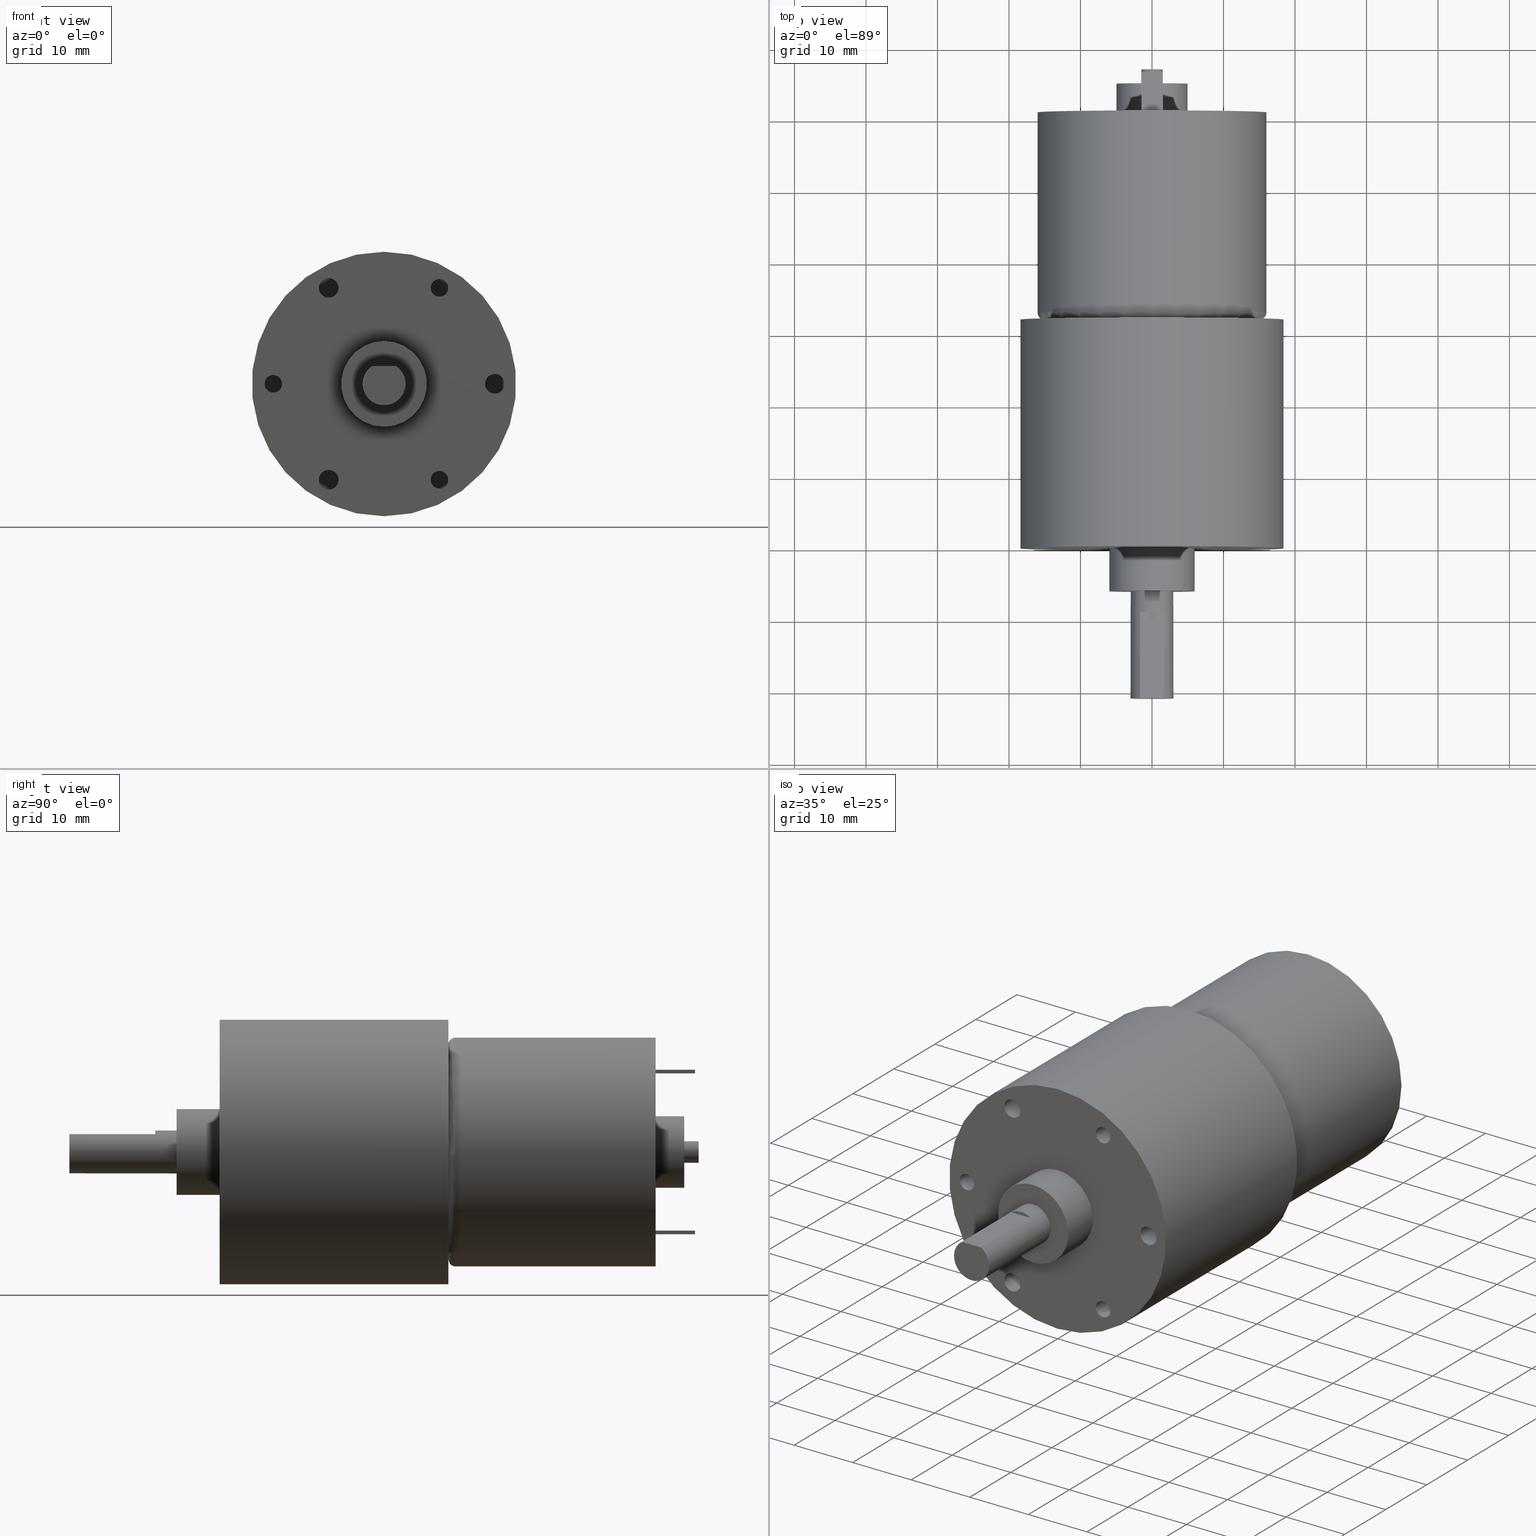
[diagram: canonical four-view strip — front | top / right | iso, engineering-drawing reading convention]
A machine part, canonical four-view strip (front | top / right | iso — engineering-drawing reading convention). The complete STEP part file that produces these views, byte-faithful:
ISO-10303-21;
HEADER;
FILE_DESCRIPTION( ( 'Unknown' ), '1' );
FILE_NAME( 'D:/Dropbox/Dropbox/User Folders/Bj\X2\00F6\X0\rn/Produkt/3D-modeller/Solid Edge format/DC motors/Brushed/Spur gear/SDC3729/SDC3729-219--625-F.stp', 'Unknown', ( 'Unknown' ), ( 'Unknown' ), 'PSStep 17.0.49', 'Unknown', '  ' );
FILE_SCHEMA( ( 'AUTOMOTIVE_DESIGN { 1 0 10303 214 1 1 1 1 }' ) );
ENDSEC;
DATA;
#1 = MECHANICAL_DESIGN_GEOMETRIC_PRESENTATION_REPRESENTATION( ' ', ( #10, #11, #12, #13, #14, #15, #16, #17, #18, #19, #20, #21, #22, #23, #24, #25, #26, #27, #28, #29, #30, #31, #32, #33, #34, #35, #36, #37, #38, #39, #40, #41, #42, #43, #44, #45, #46, #47 ), #6 );
#2 = PRODUCT_DEFINITION_CONTEXT( '', #48, 'design' );
#3 = APPLICATION_PROTOCOL_DEFINITION( 'international standard', 'automotive_design', 2001, #48 );
#4 = PRODUCT_CATEGORY_RELATIONSHIP( 'NONE', 'NONE', #49, #50 );
#5 = SHAPE_DEFINITION_REPRESENTATION( #51, #52 );
#6 =  ( GEOMETRIC_REPRESENTATION_CONTEXT( 3 )GLOBAL_UNCERTAINTY_ASSIGNED_CONTEXT( ( #55 ) )GLOBAL_UNIT_ASSIGNED_CONTEXT( ( #57, #58, #59 ) )REPRESENTATION_CONTEXT( 'NONE', 'WORKSPACE' ) );
#10 = STYLED_ITEM( '', ( #61 ), #62 );
#11 = STYLED_ITEM( '', ( #63 ), #64 );
#12 = STYLED_ITEM( '', ( #65 ), #66 );
#13 = STYLED_ITEM( '', ( #67 ), #68 );
#14 = STYLED_ITEM( '', ( #69 ), #70 );
#15 = STYLED_ITEM( '', ( #71 ), #72 );
#16 = STYLED_ITEM( '', ( #73 ), #74 );
#17 = STYLED_ITEM( '', ( #75 ), #76 );
#18 = STYLED_ITEM( '', ( #77 ), #78 );
#19 = STYLED_ITEM( '', ( #79 ), #80 );
#20 = STYLED_ITEM( '', ( #81 ), #82 );
#21 = STYLED_ITEM( '', ( #83 ), #84 );
#22 = STYLED_ITEM( '', ( #85 ), #86 );
#23 = STYLED_ITEM( '', ( #87 ), #88 );
#24 = STYLED_ITEM( '', ( #89 ), #90 );
#25 = STYLED_ITEM( '', ( #91 ), #92 );
#26 = STYLED_ITEM( '', ( #93 ), #94 );
#27 = STYLED_ITEM( '', ( #95 ), #96 );
#28 = STYLED_ITEM( '', ( #97 ), #98 );
#29 = STYLED_ITEM( '', ( #99 ), #100 );
#30 = STYLED_ITEM( '', ( #101 ), #102 );
#31 = STYLED_ITEM( '', ( #103 ), #104 );
#32 = STYLED_ITEM( '', ( #105 ), #106 );
#33 = STYLED_ITEM( '', ( #107 ), #108 );
#34 = STYLED_ITEM( '', ( #109 ), #110 );
#35 = STYLED_ITEM( '', ( #111 ), #112 );
#36 = STYLED_ITEM( '', ( #113 ), #114 );
#37 = STYLED_ITEM( '', ( #115 ), #116 );
#38 = STYLED_ITEM( '', ( #117 ), #118 );
#39 = STYLED_ITEM( '', ( #119 ), #120 );
#40 = STYLED_ITEM( '', ( #121 ), #122 );
#41 = STYLED_ITEM( '', ( #123 ), #124 );
#42 = STYLED_ITEM( '', ( #125 ), #126 );
#43 = STYLED_ITEM( '', ( #127 ), #128 );
#44 = STYLED_ITEM( '', ( #129 ), #130 );
#45 = STYLED_ITEM( '', ( #131 ), #132 );
#46 = STYLED_ITEM( '', ( #133 ), #134 );
#47 = STYLED_ITEM( '', ( #135 ), #136 );
#48 = APPLICATION_CONTEXT( 'core data for automotive mechanical design processes' );
#49 = PRODUCT_CATEGORY( 'part', 'NONE' );
#50 = PRODUCT_RELATED_PRODUCT_CATEGORY( 'detail', ' ', ( #137 ) );
#51 = PRODUCT_DEFINITION_SHAPE( 'NONE', 'NONE', #138 );
#52 = ADVANCED_BREP_SHAPE_REPRESENTATION( '1', ( #139, #140 ), #6 );
#55 = UNCERTAINTY_MEASURE_WITH_UNIT( LENGTH_MEASURE( 0.00100000000000000 ), #57, '', '' );
#57 =  ( CONVERSION_BASED_UNIT( 'MILLIMETRE', #143 )LENGTH_UNIT(  )NAMED_UNIT( #146 ) );
#58 =  ( NAMED_UNIT( #148 )PLANE_ANGLE_UNIT(  )SI_UNIT( $, .RADIAN. ) );
#59 =  ( NAMED_UNIT( #148 )SI_UNIT( $, .STERADIAN. )SOLID_ANGLE_UNIT(  ) );
#61 = PRESENTATION_STYLE_ASSIGNMENT( ( #154 ) );
#62 = ADVANCED_FACE( '', ( #155 ), #156, .T. );
#63 = PRESENTATION_STYLE_ASSIGNMENT( ( #157 ) );
#64 = ADVANCED_FACE( '', ( #158, #159 ), #160, .F. );
#65 = PRESENTATION_STYLE_ASSIGNMENT( ( #161 ) );
#66 = ADVANCED_FACE( '', ( #162 ), #163, .F. );
#67 = PRESENTATION_STYLE_ASSIGNMENT( ( #164 ) );
#68 = ADVANCED_FACE( '', ( #165 ), #166, .F. );
#69 = PRESENTATION_STYLE_ASSIGNMENT( ( #167 ) );
#70 = ADVANCED_FACE( '', ( #168 ), #169, .F. );
#71 = PRESENTATION_STYLE_ASSIGNMENT( ( #170 ) );
#72 = ADVANCED_FACE( '', ( #171, #172 ), #173, .T. );
#73 = PRESENTATION_STYLE_ASSIGNMENT( ( #174 ) );
#74 = ADVANCED_FACE( '', ( #175 ), #176, .T. );
#75 = PRESENTATION_STYLE_ASSIGNMENT( ( #177 ) );
#76 = ADVANCED_FACE( '', ( #178, #179 ), #180, .F. );
#77 = PRESENTATION_STYLE_ASSIGNMENT( ( #181 ) );
#78 = ADVANCED_FACE( '', ( #182 ), #183, .F. );
#79 = PRESENTATION_STYLE_ASSIGNMENT( ( #184 ) );
#80 = ADVANCED_FACE( '', ( #185, #186 ), #187, .T. );
#81 = PRESENTATION_STYLE_ASSIGNMENT( ( #188 ) );
#82 = ADVANCED_FACE( '', ( #189 ), #190, .F. );
#83 = PRESENTATION_STYLE_ASSIGNMENT( ( #191 ) );
#84 = ADVANCED_FACE( '', ( #192, #193 ), #194, .F. );
#85 = PRESENTATION_STYLE_ASSIGNMENT( ( #195 ) );
#86 = ADVANCED_FACE( '', ( #196, #197 ), #198, .T. );
#87 = PRESENTATION_STYLE_ASSIGNMENT( ( #199 ) );
#88 = ADVANCED_FACE( '', ( #200, #201 ), #202, .F. );
#89 = PRESENTATION_STYLE_ASSIGNMENT( ( #203 ) );
#90 = ADVANCED_FACE( '', ( #204, #205 ), #206, .F. );
#91 = PRESENTATION_STYLE_ASSIGNMENT( ( #207 ) );
#92 = ADVANCED_FACE( '', ( #208 ), #209, .F. );
#93 = PRESENTATION_STYLE_ASSIGNMENT( ( #210 ) );
#94 = ADVANCED_FACE( '', ( #211, #212 ), #213, .F. );
#95 = PRESENTATION_STYLE_ASSIGNMENT( ( #214 ) );
#96 = ADVANCED_FACE( '', ( #215 ), #216, .F. );
#97 = PRESENTATION_STYLE_ASSIGNMENT( ( #217 ) );
#98 = ADVANCED_FACE( '', ( #218 ), #219, .T. );
#99 = PRESENTATION_STYLE_ASSIGNMENT( ( #220 ) );
#100 = ADVANCED_FACE( '', ( #221, #222 ), #223, .T. );
#101 = PRESENTATION_STYLE_ASSIGNMENT( ( #224 ) );
#102 = ADVANCED_FACE( '', ( #225, #226 ), #227, .T. );
#103 = PRESENTATION_STYLE_ASSIGNMENT( ( #228 ) );
#104 = ADVANCED_FACE( '', ( #229, #230, #231, #232, #233, #234, #235, #236 ), #237, .F. );
#105 = PRESENTATION_STYLE_ASSIGNMENT( ( #238 ) );
#106 = ADVANCED_FACE( '', ( #239 ), #240, .F. );
#107 = PRESENTATION_STYLE_ASSIGNMENT( ( #241 ) );
#108 = ADVANCED_FACE( '', ( #242 ), #243, .F. );
#109 = PRESENTATION_STYLE_ASSIGNMENT( ( #244 ) );
#110 = ADVANCED_FACE( '', ( #245 ), #246, .T. );
#111 = PRESENTATION_STYLE_ASSIGNMENT( ( #247 ) );
#112 = ADVANCED_FACE( '', ( #248, #249 ), #250, .F. );
#113 = PRESENTATION_STYLE_ASSIGNMENT( ( #251 ) );
#114 = ADVANCED_FACE( '', ( #252 ), #253, .F. );
#115 = PRESENTATION_STYLE_ASSIGNMENT( ( #254 ) );
#116 = ADVANCED_FACE( '', ( #255 ), #256, .F. );
#117 = PRESENTATION_STYLE_ASSIGNMENT( ( #257 ) );
#118 = ADVANCED_FACE( '', ( #258 ), #259, .T. );
#119 = PRESENTATION_STYLE_ASSIGNMENT( ( #260 ) );
#120 = ADVANCED_FACE( '', ( #261, #262, #263, #264 ), #265, .F. );
#121 = PRESENTATION_STYLE_ASSIGNMENT( ( #266 ) );
#122 = ADVANCED_FACE( '', ( #267 ), #268, .F. );
#123 = PRESENTATION_STYLE_ASSIGNMENT( ( #269 ) );
#124 = ADVANCED_FACE( '', ( #270, #271 ), #272, .F. );
#125 = PRESENTATION_STYLE_ASSIGNMENT( ( #273 ) );
#126 = ADVANCED_FACE( '', ( #274 ), #275, .F. );
#127 = PRESENTATION_STYLE_ASSIGNMENT( ( #276 ) );
#128 = ADVANCED_FACE( '', ( #277, #278 ), #279, .T. );
#129 = PRESENTATION_STYLE_ASSIGNMENT( ( #280 ) );
#130 = ADVANCED_FACE( '', ( #281, #282 ), #283, .F. );
#131 = PRESENTATION_STYLE_ASSIGNMENT( ( #284 ) );
#132 = ADVANCED_FACE( '', ( #285 ), #286, .T. );
#133 = PRESENTATION_STYLE_ASSIGNMENT( ( #287 ) );
#134 = ADVANCED_FACE( '', ( #288 ), #289, .F. );
#135 = PRESENTATION_STYLE_ASSIGNMENT( ( #290 ) );
#136 = ADVANCED_FACE( '', ( #291, #292 ), #293, .T. );
#137 = PRODUCT( '1', '1', 'PART-1-DESC', ( #294 ) );
#138 = PRODUCT_DEFINITION( 'NONE', 'NONE', #295, #2 );
#139 = MANIFOLD_SOLID_BREP( '1', #296 );
#140 = AXIS2_PLACEMENT_3D( '', #297, #298, #299 );
#143 = LENGTH_MEASURE_WITH_UNIT( LENGTH_MEASURE( 1.00000000000000 ), #300 );
#146 = DIMENSIONAL_EXPONENTS( 1.00000000000000, 0.000000000000000, 0.000000000000000, 0.000000000000000, 0.000000000000000, 0.000000000000000, 0.000000000000000 );
#148 = DIMENSIONAL_EXPONENTS( 0.000000000000000, 0.000000000000000, 0.000000000000000, 0.000000000000000, 0.000000000000000, 0.000000000000000, 0.000000000000000 );
#154 = SURFACE_STYLE_USAGE( .BOTH., #301 );
#155 = FACE_OUTER_BOUND( '', #302, .T. );
#156 = PLANE( '', #303 );
#157 = SURFACE_STYLE_USAGE( .BOTH., #304 );
#158 = FACE_OUTER_BOUND( '', #305, .T. );
#159 = FACE_BOUND( '', #306, .T. );
#160 = PLANE( '', #307 );
#161 = SURFACE_STYLE_USAGE( .BOTH., #308 );
#162 = FACE_OUTER_BOUND( '', #309, .T. );
#163 = PLANE( '', #310 );
#164 = SURFACE_STYLE_USAGE( .BOTH., #311 );
#165 = FACE_OUTER_BOUND( '', #312, .T. );
#166 = PLANE( '', #313 );
#167 = SURFACE_STYLE_USAGE( .BOTH., #314 );
#168 = FACE_OUTER_BOUND( '', #315, .T. );
#169 = PLANE( '', #316 );
#170 = SURFACE_STYLE_USAGE( .BOTH., #317 );
#171 = FACE_OUTER_BOUND( '', #318, .T. );
#172 = FACE_OUTER_BOUND( '', #319, .T. );
#173 = TOROIDAL_SURFACE( '', #320, 15.0000000000000, 1.00000000000000 );
#174 = SURFACE_STYLE_USAGE( .BOTH., #321 );
#175 = FACE_OUTER_BOUND( '', #322, .T. );
#176 = PLANE( '', #323 );
#177 = SURFACE_STYLE_USAGE( .BOTH., #324 );
#178 = FACE_OUTER_BOUND( '', #325, .T. );
#179 = FACE_OUTER_BOUND( '', #326, .T. );
#180 = CYLINDRICAL_SURFACE( '', #327, 1.22950000000000 );
#181 = SURFACE_STYLE_USAGE( .BOTH., #328 );
#182 = FACE_OUTER_BOUND( '', #329, .T. );
#183 = PLANE( '', #330 );
#184 = SURFACE_STYLE_USAGE( .BOTH., #331 );
#185 = FACE_OUTER_BOUND( '', #332, .T. );
#186 = FACE_OUTER_BOUND( '', #333, .T. );
#187 = CYLINDRICAL_SURFACE( '', #334, 1.50000000000000 );
#188 = SURFACE_STYLE_USAGE( .BOTH., #335 );
#189 = FACE_OUTER_BOUND( '', #336, .T. );
#190 = PLANE( '', #337 );
#191 = SURFACE_STYLE_USAGE( .BOTH., #338 );
#192 = FACE_OUTER_BOUND( '', #339, .T. );
#193 = FACE_OUTER_BOUND( '', #340, .T. );
#194 = CYLINDRICAL_SURFACE( '', #341, 1.37000000000000 );
#195 = SURFACE_STYLE_USAGE( .BOTH., #342 );
#196 = FACE_OUTER_BOUND( '', #343, .T. );
#197 = FACE_OUTER_BOUND( '', #344, .T. );
#198 = CYLINDRICAL_SURFACE( '', #345, 16.0000000000000 );
#199 = SURFACE_STYLE_USAGE( .BOTH., #346 );
#200 = FACE_BOUND( '', #347, .T. );
#201 = FACE_OUTER_BOUND( '', #348, .T. );
#202 = PLANE( '', #349 );
#203 = SURFACE_STYLE_USAGE( .BOTH., #350 );
#204 = FACE_OUTER_BOUND( '', #351, .T. );
#205 = FACE_OUTER_BOUND( '', #352, .T. );
#206 = CYLINDRICAL_SURFACE( '', #353, 1.37000000000000 );
#207 = SURFACE_STYLE_USAGE( .BOTH., #354 );
#208 = FACE_OUTER_BOUND( '', #355, .T. );
#209 = PLANE( '', #356 );
#210 = SURFACE_STYLE_USAGE( .BOTH., #357 );
#211 = FACE_BOUND( '', #358, .T. );
#212 = FACE_OUTER_BOUND( '', #359, .T. );
#213 = PLANE( '', #360 );
#214 = SURFACE_STYLE_USAGE( .BOTH., #361 );
#215 = FACE_OUTER_BOUND( '', #362, .T. );
#216 = PLANE( '', #363 );
#217 = SURFACE_STYLE_USAGE( .BOTH., #364 );
#218 = FACE_OUTER_BOUND( '', #365, .T. );
#219 = PLANE( '', #366 );
#220 = SURFACE_STYLE_USAGE( .BOTH., #367 );
#221 = FACE_OUTER_BOUND( '', #368, .T. );
#222 = FACE_OUTER_BOUND( '', #369, .T. );
#223 = CYLINDRICAL_SURFACE( '', #370, 6.00000000000000 );
#224 = SURFACE_STYLE_USAGE( .BOTH., #371 );
#225 = FACE_OUTER_BOUND( '', #372, .T. );
#226 = FACE_OUTER_BOUND( '', #373, .T. );
#227 = CYLINDRICAL_SURFACE( '', #374, 5.00000000000000 );
#228 = SURFACE_STYLE_USAGE( .BOTH., #375 );
#229 = FACE_BOUND( '', #376, .T. );
#230 = FACE_BOUND( '', #377, .T. );
#231 = FACE_BOUND( '', #378, .T. );
#232 = FACE_BOUND( '', #379, .T. );
#233 = FACE_BOUND( '', #380, .T. );
#234 = FACE_BOUND( '', #381, .T. );
#235 = FACE_OUTER_BOUND( '', #382, .T. );
#236 = FACE_BOUND( '', #383, .T. );
#237 = PLANE( '', #384 );
#238 = SURFACE_STYLE_USAGE( .BOTH., #385 );
#239 = FACE_OUTER_BOUND( '', #386, .T. );
#240 = PLANE( '', #387 );
#241 = SURFACE_STYLE_USAGE( .BOTH., #388 );
#242 = FACE_OUTER_BOUND( '', #389, .T. );
#243 = PLANE( '', #390 );
#244 = SURFACE_STYLE_USAGE( .BOTH., #391 );
#245 = FACE_OUTER_BOUND( '', #392, .T. );
#246 = PLANE( '', #393 );
#247 = SURFACE_STYLE_USAGE( .BOTH., #394 );
#248 = FACE_OUTER_BOUND( '', #395, .T. );
#249 = FACE_OUTER_BOUND( '', #396, .T. );
#250 = CYLINDRICAL_SURFACE( '', #397, 1.37000000000000 );
#251 = SURFACE_STYLE_USAGE( .BOTH., #398 );
#252 = FACE_OUTER_BOUND( '', #399, .T. );
#253 = PLANE( '', #400 );
#254 = SURFACE_STYLE_USAGE( .BOTH., #401 );
#255 = FACE_OUTER_BOUND( '', #402, .T. );
#256 = PLANE( '', #403 );
#257 = SURFACE_STYLE_USAGE( .BOTH., #404 );
#258 = FACE_OUTER_BOUND( '', #405, .T. );
#259 = PLANE( '', #406 );
#260 = SURFACE_STYLE_USAGE( .BOTH., #407 );
#261 = FACE_OUTER_BOUND( '', #408, .T. );
#262 = FACE_BOUND( '', #409, .T. );
#263 = FACE_BOUND( '', #410, .T. );
#264 = FACE_BOUND( '', #411, .T. );
#265 = PLANE( '', #412 );
#266 = SURFACE_STYLE_USAGE( .BOTH., #413 );
#267 = FACE_OUTER_BOUND( '', #414, .T. );
#268 = PLANE( '', #415 );
#269 = SURFACE_STYLE_USAGE( .BOTH., #416 );
#270 = FACE_OUTER_BOUND( '', #417, .T. );
#271 = FACE_OUTER_BOUND( '', #418, .T. );
#272 = CYLINDRICAL_SURFACE( '', #419, 1.22950000000000 );
#273 = SURFACE_STYLE_USAGE( .BOTH., #420 );
#274 = FACE_OUTER_BOUND( '', #421, .T. );
#275 = PLANE( '', #422 );
#276 = SURFACE_STYLE_USAGE( .BOTH., #423 );
#277 = FACE_OUTER_BOUND( '', #424, .T. );
#278 = FACE_OUTER_BOUND( '', #425, .T. );
#279 = CYLINDRICAL_SURFACE( '', #426, 18.5000000000000 );
#280 = SURFACE_STYLE_USAGE( .BOTH., #427 );
#281 = FACE_OUTER_BOUND( '', #428, .T. );
#282 = FACE_OUTER_BOUND( '', #429, .T. );
#283 = CYLINDRICAL_SURFACE( '', #430, 1.22950000000000 );
#284 = SURFACE_STYLE_USAGE( .BOTH., #431 );
#285 = FACE_OUTER_BOUND( '', #432, .T. );
#286 = PLANE( '', #433 );
#287 = SURFACE_STYLE_USAGE( .BOTH., #434 );
#288 = FACE_OUTER_BOUND( '', #435, .T. );
#289 = PLANE( '', #436 );
#290 = SURFACE_STYLE_USAGE( .BOTH., #437 );
#291 = FACE_OUTER_BOUND( '', #438, .T. );
#292 = FACE_OUTER_BOUND( '', #439, .T. );
#293 = CYLINDRICAL_SURFACE( '', #440, 3.00000000000000 );
#294 = PRODUCT_CONTEXT( '', #48, 'mechanical' );
#295 = PRODUCT_DEFINITION_FORMATION_WITH_SPECIFIED_SOURCE( ' ', 'NONE', #137, .NOT_KNOWN. );
#296 = CLOSED_SHELL( '', ( #128, #104, #100, #64, #136, #126, #120, #86, #72, #88, #102, #94, #80, #92, #106, #118, #76, #134, #62, #98, #110, #74, #66, #78, #68, #116, #108, #132, #90, #82, #130, #96, #112, #122, #124, #70, #84, #114 ) );
#297 = CARTESIAN_POINT( '', ( 0.000000000000000, 0.000000000000000, 0.000000000000000 ) );
#298 = DIRECTION( '', ( 0.000000000000000, 0.000000000000000, 1.00000000000000 ) );
#299 = DIRECTION( '', ( 1.00000000000000, 0.000000000000000, 0.000000000000000 ) );
#300 =  ( LENGTH_UNIT(  )NAMED_UNIT( #146 )SI_UNIT( .MILLI., .METRE. ) );
#301 = SURFACE_SIDE_STYLE( '', ( #442 ) );
#302 = EDGE_LOOP( '', ( #443, #444, #445, #446 ) );
#303 = AXIS2_PLACEMENT_3D( '', #447, #448, #449 );
#304 = SURFACE_SIDE_STYLE( '', ( #450 ) );
#305 = EDGE_LOOP( '', ( #451 ) );
#306 = EDGE_LOOP( '', ( #452 ) );
#307 = AXIS2_PLACEMENT_3D( '', #453, #454, #455 );
#308 = SURFACE_SIDE_STYLE( '', ( #456 ) );
#309 = EDGE_LOOP( '', ( #457, #458, #459, #460 ) );
#310 = AXIS2_PLACEMENT_3D( '', #461, #462, #463 );
#311 = SURFACE_SIDE_STYLE( '', ( #464 ) );
#312 = EDGE_LOOP( '', ( #465, #466, #467, #468 ) );
#313 = AXIS2_PLACEMENT_3D( '', #469, #470, #471 );
#314 = SURFACE_SIDE_STYLE( '', ( #472 ) );
#315 = EDGE_LOOP( '', ( #473 ) );
#316 = AXIS2_PLACEMENT_3D( '', #474, #475, #476 );
#317 = SURFACE_SIDE_STYLE( '', ( #477 ) );
#318 = EDGE_LOOP( '', ( #478 ) );
#319 = EDGE_LOOP( '', ( #479 ) );
#320 = AXIS2_PLACEMENT_3D( '', #480, #481, #482 );
#321 = SURFACE_SIDE_STYLE( '', ( #483 ) );
#322 = EDGE_LOOP( '', ( #484, #485, #486, #487 ) );
#323 = AXIS2_PLACEMENT_3D( '', #488, #489, #490 );
#324 = SURFACE_SIDE_STYLE( '', ( #491 ) );
#325 = EDGE_LOOP( '', ( #492 ) );
#326 = EDGE_LOOP( '', ( #493 ) );
#327 = AXIS2_PLACEMENT_3D( '', #494, #495, #496 );
#328 = SURFACE_SIDE_STYLE( '', ( #497 ) );
#329 = EDGE_LOOP( '', ( #498, #499, #500, #501 ) );
#330 = AXIS2_PLACEMENT_3D( '', #502, #503, #504 );
#331 = SURFACE_SIDE_STYLE( '', ( #505 ) );
#332 = EDGE_LOOP( '', ( #506 ) );
#333 = EDGE_LOOP( '', ( #507 ) );
#334 = AXIS2_PLACEMENT_3D( '', #508, #509, #510 );
#335 = SURFACE_SIDE_STYLE( '', ( #511 ) );
#336 = EDGE_LOOP( '', ( #512 ) );
#337 = AXIS2_PLACEMENT_3D( '', #513, #514, #515 );
#338 = SURFACE_SIDE_STYLE( '', ( #516 ) );
#339 = EDGE_LOOP( '', ( #517 ) );
#340 = EDGE_LOOP( '', ( #518 ) );
#341 = AXIS2_PLACEMENT_3D( '', #519, #520, #521 );
#342 = SURFACE_SIDE_STYLE( '', ( #522 ) );
#343 = EDGE_LOOP( '', ( #523 ) );
#344 = EDGE_LOOP( '', ( #524 ) );
#345 = AXIS2_PLACEMENT_3D( '', #525, #526, #527 );
#346 = SURFACE_SIDE_STYLE( '', ( #528 ) );
#347 = EDGE_LOOP( '', ( #529 ) );
#348 = EDGE_LOOP( '', ( #530 ) );
#349 = AXIS2_PLACEMENT_3D( '', #531, #532, #533 );
#350 = SURFACE_SIDE_STYLE( '', ( #534 ) );
#351 = EDGE_LOOP( '', ( #535 ) );
#352 = EDGE_LOOP( '', ( #536 ) );
#353 = AXIS2_PLACEMENT_3D( '', #537, #538, #539 );
#354 = SURFACE_SIDE_STYLE( '', ( #540 ) );
#355 = EDGE_LOOP( '', ( #541 ) );
#356 = AXIS2_PLACEMENT_3D( '', #542, #543, #544 );
#357 = SURFACE_SIDE_STYLE( '', ( #545 ) );
#358 = EDGE_LOOP( '', ( #546 ) );
#359 = EDGE_LOOP( '', ( #547 ) );
#360 = AXIS2_PLACEMENT_3D( '', #548, #549, #550 );
#361 = SURFACE_SIDE_STYLE( '', ( #551 ) );
#362 = EDGE_LOOP( '', ( #552 ) );
#363 = AXIS2_PLACEMENT_3D( '', #553, #554, #555 );
#364 = SURFACE_SIDE_STYLE( '', ( #556 ) );
#365 = EDGE_LOOP( '', ( #557, #558, #559, #560 ) );
#366 = AXIS2_PLACEMENT_3D( '', #561, #562, #563 );
#367 = SURFACE_SIDE_STYLE( '', ( #564 ) );
#368 = EDGE_LOOP( '', ( #565 ) );
#369 = EDGE_LOOP( '', ( #566 ) );
#370 = AXIS2_PLACEMENT_3D( '', #567, #568, #569 );
#371 = SURFACE_SIDE_STYLE( '', ( #570 ) );
#372 = EDGE_LOOP( '', ( #571 ) );
#373 = EDGE_LOOP( '', ( #572 ) );
#374 = AXIS2_PLACEMENT_3D( '', #573, #574, #575 );
#375 = SURFACE_SIDE_STYLE( '', ( #576 ) );
#376 = EDGE_LOOP( '', ( #577 ) );
#377 = EDGE_LOOP( '', ( #578 ) );
#378 = EDGE_LOOP( '', ( #579 ) );
#379 = EDGE_LOOP( '', ( #580 ) );
#380 = EDGE_LOOP( '', ( #581 ) );
#381 = EDGE_LOOP( '', ( #582 ) );
#382 = EDGE_LOOP( '', ( #583 ) );
#383 = EDGE_LOOP( '', ( #584 ) );
#384 = AXIS2_PLACEMENT_3D( '', #585, #586, #587 );
#385 = SURFACE_SIDE_STYLE( '', ( #588 ) );
#386 = EDGE_LOOP( '', ( #589, #590, #591, #592 ) );
#387 = AXIS2_PLACEMENT_3D( '', #593, #594, #595 );
#388 = SURFACE_SIDE_STYLE( '', ( #596 ) );
#389 = EDGE_LOOP( '', ( #597, #598, #599, #600 ) );
#390 = AXIS2_PLACEMENT_3D( '', #601, #602, #603 );
#391 = SURFACE_SIDE_STYLE( '', ( #604 ) );
#392 = EDGE_LOOP( '', ( #605, #606, #607, #608 ) );
#393 = AXIS2_PLACEMENT_3D( '', #609, #610, #611 );
#394 = SURFACE_SIDE_STYLE( '', ( #612 ) );
#395 = EDGE_LOOP( '', ( #613 ) );
#396 = EDGE_LOOP( '', ( #614 ) );
#397 = AXIS2_PLACEMENT_3D( '', #615, #616, #617 );
#398 = SURFACE_SIDE_STYLE( '', ( #618 ) );
#399 = EDGE_LOOP( '', ( #619 ) );
#400 = AXIS2_PLACEMENT_3D( '', #620, #621, #622 );
#401 = SURFACE_SIDE_STYLE( '', ( #623 ) );
#402 = EDGE_LOOP( '', ( #624, #625, #626, #627 ) );
#403 = AXIS2_PLACEMENT_3D( '', #628, #629, #630 );
#404 = SURFACE_SIDE_STYLE( '', ( #631 ) );
#405 = EDGE_LOOP( '', ( #632, #633 ) );
#406 = AXIS2_PLACEMENT_3D( '', #634, #635, #636 );
#407 = SURFACE_SIDE_STYLE( '', ( #637 ) );
#408 = EDGE_LOOP( '', ( #638 ) );
#409 = EDGE_LOOP( '', ( #639 ) );
#410 = EDGE_LOOP( '', ( #640, #641, #642, #643 ) );
#411 = EDGE_LOOP( '', ( #644, #645, #646, #647 ) );
#412 = AXIS2_PLACEMENT_3D( '', #648, #649, #650 );
#413 = SURFACE_SIDE_STYLE( '', ( #651 ) );
#414 = EDGE_LOOP( '', ( #652 ) );
#415 = AXIS2_PLACEMENT_3D( '', #653, #654, #655 );
#416 = SURFACE_SIDE_STYLE( '', ( #656 ) );
#417 = EDGE_LOOP( '', ( #657 ) );
#418 = EDGE_LOOP( '', ( #658 ) );
#419 = AXIS2_PLACEMENT_3D( '', #659, #660, #661 );
#420 = SURFACE_SIDE_STYLE( '', ( #662 ) );
#421 = EDGE_LOOP( '', ( #663, #664 ) );
#422 = AXIS2_PLACEMENT_3D( '', #665, #666, #667 );
#423 = SURFACE_SIDE_STYLE( '', ( #668 ) );
#424 = EDGE_LOOP( '', ( #669 ) );
#425 = EDGE_LOOP( '', ( #670 ) );
#426 = AXIS2_PLACEMENT_3D( '', #671, #672, #673 );
#427 = SURFACE_SIDE_STYLE( '', ( #674 ) );
#428 = EDGE_LOOP( '', ( #675 ) );
#429 = EDGE_LOOP( '', ( #676 ) );
#430 = AXIS2_PLACEMENT_3D( '', #677, #678, #679 );
#431 = SURFACE_SIDE_STYLE( '', ( #680 ) );
#432 = EDGE_LOOP( '', ( #681, #682, #683, #684 ) );
#433 = AXIS2_PLACEMENT_3D( '', #685, #686, #687 );
#434 = SURFACE_SIDE_STYLE( '', ( #688 ) );
#435 = EDGE_LOOP( '', ( #689 ) );
#436 = AXIS2_PLACEMENT_3D( '', #690, #691, #692 );
#437 = SURFACE_SIDE_STYLE( '', ( #693 ) );
#438 = EDGE_LOOP( '', ( #694, #695, #696, #697 ) );
#439 = EDGE_LOOP( '', ( #698 ) );
#440 = AXIS2_PLACEMENT_3D( '', #699, #700, #701 );
#442 = SURFACE_STYLE_FILL_AREA( #702 );
#443 = ORIENTED_EDGE( '', *, *, #703, .F. );
#444 = ORIENTED_EDGE( '', *, *, #704, .F. );
#445 = ORIENTED_EDGE( '', *, *, #705, .T. );
#446 = ORIENTED_EDGE( '', *, *, #706, .T. );
#447 = CARTESIAN_POINT( '', ( -1.50000000000000, 66.5000000000000, -11.5000000000000 ) );
#448 = DIRECTION( '', ( 0.000000000000000, -1.16882304974597E-018, -1.00000000000000 ) );
#449 = DIRECTION( '', ( 0.000000000000000, 1.00000000000000, -1.16882304974597E-018 ) );
#450 = SURFACE_STYLE_FILL_AREA( #707 );
#451 = ORIENTED_EDGE( '', *, *, #708, .F. );
#452 = ORIENTED_EDGE( '', *, *, #709, .T. );
#453 = CARTESIAN_POINT( '', ( 0.000000000000000, -6.00000000000000, -6.00000000000000 ) );
#454 = DIRECTION( '', ( 0.000000000000000, 1.00000000000000, -1.16882304974597E-018 ) );
#455 = DIRECTION( '', ( 0.000000000000000, 1.16882304974597E-018, 1.00000000000000 ) );
#456 = SURFACE_STYLE_FILL_AREA( #710 );
#457 = ORIENTED_EDGE( '', *, *, #705, .F. );
#458 = ORIENTED_EDGE( '', *, *, #711, .F. );
#459 = ORIENTED_EDGE( '', *, *, #712, .F. );
#460 = ORIENTED_EDGE( '', *, *, #713, .F. );
#461 = CARTESIAN_POINT( '', ( 0.000000000000000, 66.5000000000000, -6.42852677360284E-018 ) );
#462 = DIRECTION( '', ( 0.000000000000000, -1.00000000000000, 0.000000000000000 ) );
#463 = DIRECTION( '', ( 0.000000000000000, 0.000000000000000, -1.00000000000000 ) );
#464 = SURFACE_STYLE_FILL_AREA( #714 );
#465 = ORIENTED_EDGE( '', *, *, #715, .T. );
#466 = ORIENTED_EDGE( '', *, *, #716, .F. );
#467 = ORIENTED_EDGE( '', *, *, #717, .F. );
#468 = ORIENTED_EDGE( '', *, *, #718, .T. );
#469 = CARTESIAN_POINT( '', ( 1.50000000000000, 66.5000000000000, 11.5000000000000 ) );
#470 = DIRECTION( '', ( -1.00000000000000, 1.01379239182857E-033, 8.67361737988406E-016 ) );
#471 = DIRECTION( '', ( 8.67361737988406E-016, 0.000000000000000, 1.00000000000000 ) );
#472 = SURFACE_STYLE_FILL_AREA( #719 );
#473 = ORIENTED_EDGE( '', *, *, #720, .F. );
#474 = CARTESIAN_POINT( '', ( 7.75000000000000, 5.00000000000000, -13.4233937586588 ) );
#475 = DIRECTION( '', ( -2.88889491658086E-034, 1.00000000000000, -1.16882304974597E-018 ) );
#476 = DIRECTION( '', ( 0.000000000000000, 1.16882304974597E-018, 1.00000000000000 ) );
#477 = SURFACE_STYLE_FILL_AREA( #721 );
#478 = ORIENTED_EDGE( '', *, *, #722, .F. );
#479 = ORIENTED_EDGE( '', *, *, #723, .T. );
#480 = CARTESIAN_POINT( '', ( 0.000000000000000, 33.0000000000000, 0.000000000000000 ) );
#481 = DIRECTION( '', ( 0.000000000000000, 1.00000000000000, -1.16882304974597E-018 ) );
#482 = DIRECTION( '', ( 0.000000000000000, 1.16882304974597E-018, 1.00000000000000 ) );
#483 = SURFACE_STYLE_FILL_AREA( #724 );
#484 = ORIENTED_EDGE( '', *, *, #725, .F. );
#485 = ORIENTED_EDGE( '', *, *, #726, .F. );
#486 = ORIENTED_EDGE( '', *, *, #711, .T. );
#487 = ORIENTED_EDGE( '', *, *, #704, .T. );
#488 = CARTESIAN_POINT( '', ( -1.50000000000000, 66.5000000000000, -11.0000000000000 ) );
#489 = DIRECTION( '', ( -1.00000000000000, 1.52068858774284E-032, 1.30104260698259E-014 ) );
#490 = DIRECTION( '', ( 1.30104260698259E-014, 0.000000000000000, 1.00000000000000 ) );
#491 = SURFACE_STYLE_FILL_AREA( #727 );
#492 = ORIENTED_EDGE( '', *, *, #728, .T. );
#493 = ORIENTED_EDGE( '', *, *, #729, .F. );
#494 = CARTESIAN_POINT( '', ( -15.5000000000000, 5.00000000000000, 4.27836753745472E-016 ) );
#495 = DIRECTION( '', ( -0.000000000000000, 1.00000000000000, -1.16882304974597E-018 ) );
#496 = DIRECTION( '', ( 0.000000000000000, -1.16882304974597E-018, -1.00000000000000 ) );
#497 = SURFACE_STYLE_FILL_AREA( #730 );
#498 = ORIENTED_EDGE( '', *, *, #731, .T. );
#499 = ORIENTED_EDGE( '', *, *, #718, .F. );
#500 = ORIENTED_EDGE( '', *, *, #732, .F. );
#501 = ORIENTED_EDGE( '', *, *, #733, .T. );
#502 = CARTESIAN_POINT( '', ( -1.50000000000000, 66.5000000000000, 11.5000000000000 ) );
#503 = DIRECTION( '', ( 0.000000000000000, -1.16882304974597E-018, -1.00000000000000 ) );
#504 = DIRECTION( '', ( 0.000000000000000, 1.00000000000000, -1.16882304974597E-018 ) );
#505 = SURFACE_STYLE_FILL_AREA( #734 );
#506 = ORIENTED_EDGE( '', *, *, #735, .F. );
#507 = ORIENTED_EDGE( '', *, *, #736, .T. );
#508 = CARTESIAN_POINT( '', ( 0.000000000000000, 92.6621544602951, -1.08305661972314E-016 ) );
#509 = DIRECTION( '', ( -0.000000000000000, -1.00000000000000, 1.16882304974597E-018 ) );
#510 = DIRECTION( '', ( 0.000000000000000, 1.16882304974597E-018, 1.00000000000000 ) );
#511 = SURFACE_STYLE_FILL_AREA( #737 );
#512 = ORIENTED_EDGE( '', *, *, #738, .F. );
#513 = CARTESIAN_POINT( '', ( -7.75000000000000, 5.00000000000000, 13.4233937586588 ) );
#514 = DIRECTION( '', ( 0.000000000000000, 1.00000000000000, -1.16882304974597E-018 ) );
#515 = DIRECTION( '', ( 0.000000000000000, 1.16882304974597E-018, 1.00000000000000 ) );
#516 = SURFACE_STYLE_FILL_AREA( #739 );
#517 = ORIENTED_EDGE( '', *, *, #740, .T. );
#518 = ORIENTED_EDGE( '', *, *, #741, .F. );
#519 = CARTESIAN_POINT( '', ( -7.75000000000000, 5.00000000000000, -13.4233937586588 ) );
#520 = DIRECTION( '', ( -0.000000000000000, 1.00000000000000, -1.16882304974597E-018 ) );
#521 = DIRECTION( '', ( 0.000000000000000, -1.16882304974597E-018, -1.00000000000000 ) );
#522 = SURFACE_STYLE_FILL_AREA( #742 );
#523 = ORIENTED_EDGE( '', *, *, #743, .F. );
#524 = ORIENTED_EDGE( '', *, *, #722, .T. );
#525 = CARTESIAN_POINT( '', ( 0.000000000000000, 92.6621544602951, -1.08305661972314E-016 ) );
#526 = DIRECTION( '', ( -0.000000000000000, -1.00000000000000, 1.16882304974597E-018 ) );
#527 = DIRECTION( '', ( 0.000000000000000, 1.16882304974597E-018, 1.00000000000000 ) );
#528 = SURFACE_STYLE_FILL_AREA( #744 );
#529 = ORIENTED_EDGE( '', *, *, #723, .F. );
#530 = ORIENTED_EDGE( '', *, *, #745, .T. );
#531 = CARTESIAN_POINT( '', ( 0.000000000000000, 32.0000000000000, -18.5000000000000 ) );
#532 = DIRECTION( '', ( 0.000000000000000, -1.00000000000000, 1.16882304974597E-018 ) );
#533 = DIRECTION( '', ( 0.000000000000000, -1.16882304974597E-018, -1.00000000000000 ) );
#534 = SURFACE_STYLE_FILL_AREA( #746 );
#535 = ORIENTED_EDGE( '', *, *, #738, .T. );
#536 = ORIENTED_EDGE( '', *, *, #747, .F. );
#537 = CARTESIAN_POINT( '', ( -7.75000000000000, 5.00000000000000, 13.4233937586588 ) );
#538 = DIRECTION( '', ( -0.000000000000000, 1.00000000000000, -1.16882304974597E-018 ) );
#539 = DIRECTION( '', ( 0.000000000000000, -1.16882304974597E-018, -1.00000000000000 ) );
#540 = SURFACE_STYLE_FILL_AREA( #748 );
#541 = ORIENTED_EDGE( '', *, *, #735, .T. );
#542 = CARTESIAN_POINT( '', ( 0.000000000000000, 67.0000000000000, -1.50000000000000 ) );
#543 = DIRECTION( '', ( 0.000000000000000, -1.00000000000000, 1.16882304974597E-018 ) );
#544 = DIRECTION( '', ( 0.000000000000000, -1.16882304974597E-018, -1.00000000000000 ) );
#545 = SURFACE_STYLE_FILL_AREA( #749 );
#546 = ORIENTED_EDGE( '', *, *, #736, .F. );
#547 = ORIENTED_EDGE( '', *, *, #750, .T. );
#548 = CARTESIAN_POINT( '', ( 0.000000000000000, 65.0000000000000, -5.00000000000000 ) );
#549 = DIRECTION( '', ( 0.000000000000000, -1.00000000000000, 1.16882304974597E-018 ) );
#550 = DIRECTION( '', ( 0.000000000000000, -1.16882304974597E-018, -1.00000000000000 ) );
#551 = SURFACE_STYLE_FILL_AREA( #751 );
#552 = ORIENTED_EDGE( '', *, *, #752, .F. );
#553 = CARTESIAN_POINT( '', ( 7.75000000000000, 5.00000000000000, 13.4233937586588 ) );
#554 = DIRECTION( '', ( 1.92592994438724E-034, 1.00000000000000, -1.16882304974597E-018 ) );
#555 = DIRECTION( '', ( 0.000000000000000, 1.16882304974597E-018, 1.00000000000000 ) );
#556 = SURFACE_STYLE_FILL_AREA( #753 );
#557 = ORIENTED_EDGE( '', *, *, #754, .F. );
#558 = ORIENTED_EDGE( '', *, *, #706, .F. );
#559 = ORIENTED_EDGE( '', *, *, #713, .T. );
#560 = ORIENTED_EDGE( '', *, *, #755, .T. );
#561 = CARTESIAN_POINT( '', ( 1.50000000000000, 66.5000000000000, -11.5000000000000 ) );
#562 = DIRECTION( '', ( 1.00000000000000, -1.67275744651713E-032, -1.43114686768085E-014 ) );
#563 = DIRECTION( '', ( -1.43114686768085E-014, 0.000000000000000, -1.00000000000000 ) );
#564 = SURFACE_STYLE_FILL_AREA( #756 );
#565 = ORIENTED_EDGE( '', *, *, #757, .F. );
#566 = ORIENTED_EDGE( '', *, *, #708, .T. );
#567 = CARTESIAN_POINT( '', ( 0.000000000000000, 92.6621544602951, -1.08305661972314E-016 ) );
#568 = DIRECTION( '', ( -0.000000000000000, -1.00000000000000, 1.16882304974597E-018 ) );
#569 = DIRECTION( '', ( 0.000000000000000, 1.16882304974597E-018, 1.00000000000000 ) );
#570 = SURFACE_STYLE_FILL_AREA( #758 );
#571 = ORIENTED_EDGE( '', *, *, #750, .F. );
#572 = ORIENTED_EDGE( '', *, *, #759, .T. );
#573 = CARTESIAN_POINT( '', ( 0.000000000000000, 92.6621544602951, -1.08305661972314E-016 ) );
#574 = DIRECTION( '', ( -0.000000000000000, -1.00000000000000, 1.16882304974597E-018 ) );
#575 = DIRECTION( '', ( 0.000000000000000, 1.16882304974597E-018, 1.00000000000000 ) );
#576 = SURFACE_STYLE_FILL_AREA( #760 );
#577 = ORIENTED_EDGE( '', *, *, #741, .T. );
#578 = ORIENTED_EDGE( '', *, *, #761, .T. );
#579 = ORIENTED_EDGE( '', *, *, #762, .T. );
#580 = ORIENTED_EDGE( '', *, *, #763, .T. );
#581 = ORIENTED_EDGE( '', *, *, #747, .T. );
#582 = ORIENTED_EDGE( '', *, *, #729, .T. );
#583 = ORIENTED_EDGE( '', *, *, #764, .F. );
#584 = ORIENTED_EDGE( '', *, *, #757, .T. );
#585 = CARTESIAN_POINT( '', ( 0.000000000000000, -7.30514406091232E-018, -18.5000000000000 ) );
#586 = DIRECTION( '', ( 0.000000000000000, 1.00000000000000, -1.16882304974597E-018 ) );
#587 = DIRECTION( '', ( 0.000000000000000, 1.16882304974597E-018, 1.00000000000000 ) );
#588 = SURFACE_STYLE_FILL_AREA( #765 );
#589 = ORIENTED_EDGE( '', *, *, #766, .T. );
#590 = ORIENTED_EDGE( '', *, *, #767, .F. );
#591 = ORIENTED_EDGE( '', *, *, #768, .F. );
#592 = ORIENTED_EDGE( '', *, *, #769, .T. );
#593 = CARTESIAN_POINT( '', ( -1.65831239517770, -9.00000000000000, 2.50000000000000 ) );
#594 = DIRECTION( '', ( 1.30759701928095E-016, -1.16882304974597E-018, -1.00000000000000 ) );
#595 = DIRECTION( '', ( -1.00000000000000, 0.000000000000000, -1.30759701928095E-016 ) );
#596 = SURFACE_STYLE_FILL_AREA( #770 );
#597 = ORIENTED_EDGE( '', *, *, #771, .T. );
#598 = ORIENTED_EDGE( '', *, *, #733, .F. );
#599 = ORIENTED_EDGE( '', *, *, #772, .F. );
#600 = ORIENTED_EDGE( '', *, *, #773, .T. );
#601 = CARTESIAN_POINT( '', ( -1.50000000000000, 66.5000000000000, 11.0000000000000 ) );
#602 = DIRECTION( '', ( 1.00000000000000, 0.000000000000000, 0.000000000000000 ) );
#603 = DIRECTION( '', ( 0.000000000000000, 0.000000000000000, -1.00000000000000 ) );
#604 = SURFACE_STYLE_FILL_AREA( #774 );
#605 = ORIENTED_EDGE( '', *, *, #775, .F. );
#606 = ORIENTED_EDGE( '', *, *, #755, .F. );
#607 = ORIENTED_EDGE( '', *, *, #712, .T. );
#608 = ORIENTED_EDGE( '', *, *, #726, .T. );
#609 = CARTESIAN_POINT( '', ( 1.50000000000000, 66.5000000000000, -11.0000000000000 ) );
#610 = DIRECTION( '', ( 0.000000000000000, 1.16882304974597E-018, 1.00000000000000 ) );
#611 = DIRECTION( '', ( 0.000000000000000, -1.00000000000000, 1.16882304974597E-018 ) );
#612 = SURFACE_STYLE_FILL_AREA( #776 );
#613 = ORIENTED_EDGE( '', *, *, #777, .T. );
#614 = ORIENTED_EDGE( '', *, *, #762, .F. );
#615 = CARTESIAN_POINT( '', ( 15.5000000000000, 5.00000000000000, 1.60403480375367E-014 ) );
#616 = DIRECTION( '', ( -0.000000000000000, 1.00000000000000, -1.16882304974597E-018 ) );
#617 = DIRECTION( '', ( 0.000000000000000, -1.16882304974597E-018, -1.00000000000000 ) );
#618 = SURFACE_STYLE_FILL_AREA( #778 );
#619 = ORIENTED_EDGE( '', *, *, #740, .F. );
#620 = CARTESIAN_POINT( '', ( -7.75000000000000, 5.00000000000000, -13.4233937586588 ) );
#621 = DIRECTION( '', ( 0.000000000000000, 1.00000000000000, -1.16882304974597E-018 ) );
#622 = DIRECTION( '', ( 0.000000000000000, 1.16882304974597E-018, 1.00000000000000 ) );
#623 = SURFACE_STYLE_FILL_AREA( #779 );
#624 = ORIENTED_EDGE( '', *, *, #780, .T. );
#625 = ORIENTED_EDGE( '', *, *, #773, .F. );
#626 = ORIENTED_EDGE( '', *, *, #781, .F. );
#627 = ORIENTED_EDGE( '', *, *, #716, .T. );
#628 = CARTESIAN_POINT( '', ( 1.50000000000000, 66.5000000000000, 11.0000000000000 ) );
#629 = DIRECTION( '', ( 0.000000000000000, 1.16882304974597E-018, 1.00000000000000 ) );
#630 = DIRECTION( '', ( 0.000000000000000, -1.00000000000000, 1.16882304974597E-018 ) );
#631 = SURFACE_STYLE_FILL_AREA( #782 );
#632 = ORIENTED_EDGE( '', *, *, #783, .T. );
#633 = ORIENTED_EDGE( '', *, *, #768, .T. );
#634 = CARTESIAN_POINT( '', ( 0.000000000000000, -9.00000000000000, 1.05194074477139E-017 ) );
#635 = DIRECTION( '', ( 0.000000000000000, -1.00000000000000, 1.16882304974597E-018 ) );
#636 = DIRECTION( '', ( 0.000000000000000, -1.16882304974597E-018, -1.00000000000000 ) );
#637 = SURFACE_STYLE_FILL_AREA( #784 );
#638 = ORIENTED_EDGE( '', *, *, #743, .T. );
#639 = ORIENTED_EDGE( '', *, *, #759, .F. );
#640 = ORIENTED_EDGE( '', *, *, #725, .T. );
#641 = ORIENTED_EDGE( '', *, *, #703, .T. );
#642 = ORIENTED_EDGE( '', *, *, #754, .T. );
#643 = ORIENTED_EDGE( '', *, *, #775, .T. );
#644 = ORIENTED_EDGE( '', *, *, #731, .F. );
#645 = ORIENTED_EDGE( '', *, *, #771, .F. );
#646 = ORIENTED_EDGE( '', *, *, #780, .F. );
#647 = ORIENTED_EDGE( '', *, *, #715, .F. );
#648 = CARTESIAN_POINT( '', ( 0.000000000000000, 61.0000000000000, -16.0000000000000 ) );
#649 = DIRECTION( '', ( 0.000000000000000, -1.00000000000000, 1.16882304974597E-018 ) );
#650 = DIRECTION( '', ( 0.000000000000000, -1.16882304974597E-018, -1.00000000000000 ) );
#651 = SURFACE_STYLE_FILL_AREA( #785 );
#652 = ORIENTED_EDGE( '', *, *, #777, .F. );
#653 = CARTESIAN_POINT( '', ( 15.5000000000000, 5.00000000000000, 1.60403480375367E-014 ) );
#654 = DIRECTION( '', ( 0.000000000000000, 1.00000000000000, -1.16882304974597E-018 ) );
#655 = DIRECTION( '', ( 0.000000000000000, 1.16882304974597E-018, 1.00000000000000 ) );
#656 = SURFACE_STYLE_FILL_AREA( #786 );
#657 = ORIENTED_EDGE( '', *, *, #720, .T. );
#658 = ORIENTED_EDGE( '', *, *, #761, .F. );
#659 = CARTESIAN_POINT( '', ( 7.75000000000000, 5.00000000000000, -13.4233937586588 ) );
#660 = DIRECTION( '', ( -0.000000000000000, 1.00000000000000, -1.16882304974597E-018 ) );
#661 = DIRECTION( '', ( 0.000000000000000, -1.16882304974597E-018, -1.00000000000000 ) );
#662 = SURFACE_STYLE_FILL_AREA( #787 );
#663 = ORIENTED_EDGE( '', *, *, #788, .F. );
#664 = ORIENTED_EDGE( '', *, *, #766, .F. );
#665 = CARTESIAN_POINT( '', ( 0.000000000000000, -21.0000000000000, -3.00000000000000 ) );
#666 = DIRECTION( '', ( 0.000000000000000, 1.00000000000000, -1.16882304974597E-018 ) );
#667 = DIRECTION( '', ( 0.000000000000000, 1.16882304974597E-018, 1.00000000000000 ) );
#668 = SURFACE_STYLE_FILL_AREA( #789 );
#669 = ORIENTED_EDGE( '', *, *, #745, .F. );
#670 = ORIENTED_EDGE( '', *, *, #764, .T. );
#671 = CARTESIAN_POINT( '', ( 0.000000000000000, 92.6621544602951, -1.08305661972314E-016 ) );
#672 = DIRECTION( '', ( -0.000000000000000, -1.00000000000000, 1.16882304974597E-018 ) );
#673 = DIRECTION( '', ( 0.000000000000000, 1.16882304974597E-018, 1.00000000000000 ) );
#674 = SURFACE_STYLE_FILL_AREA( #790 );
#675 = ORIENTED_EDGE( '', *, *, #752, .T. );
#676 = ORIENTED_EDGE( '', *, *, #763, .F. );
#677 = CARTESIAN_POINT( '', ( 7.75000000000000, 5.00000000000000, 13.4233937586588 ) );
#678 = DIRECTION( '', ( -0.000000000000000, 1.00000000000000, -1.16882304974597E-018 ) );
#679 = DIRECTION( '', ( 0.000000000000000, -1.16882304974597E-018, -1.00000000000000 ) );
#680 = SURFACE_STYLE_FILL_AREA( #791 );
#681 = ORIENTED_EDGE( '', *, *, #732, .T. );
#682 = ORIENTED_EDGE( '', *, *, #717, .T. );
#683 = ORIENTED_EDGE( '', *, *, #781, .T. );
#684 = ORIENTED_EDGE( '', *, *, #772, .T. );
#685 = CARTESIAN_POINT( '', ( 0.000000000000000, 66.5000000000000, -6.42852677360284E-018 ) );
#686 = DIRECTION( '', ( 0.000000000000000, 1.00000000000000, 0.000000000000000 ) );
#687 = DIRECTION( '', ( 0.000000000000000, 0.000000000000000, 1.00000000000000 ) );
#688 = SURFACE_STYLE_FILL_AREA( #792 );
#689 = ORIENTED_EDGE( '', *, *, #728, .F. );
#690 = CARTESIAN_POINT( '', ( -15.5000000000000, 5.00000000000000, 4.27836753745472E-016 ) );
#691 = DIRECTION( '', ( 0.000000000000000, 1.00000000000000, -1.16882304974597E-018 ) );
#692 = DIRECTION( '', ( 0.000000000000000, 1.16882304974597E-018, 1.00000000000000 ) );
#693 = SURFACE_STYLE_FILL_AREA( #793 );
#694 = ORIENTED_EDGE( '', *, *, #788, .T. );
#695 = ORIENTED_EDGE( '', *, *, #769, .F. );
#696 = ORIENTED_EDGE( '', *, *, #783, .F. );
#697 = ORIENTED_EDGE( '', *, *, #767, .T. );
#698 = ORIENTED_EDGE( '', *, *, #709, .F. );
#699 = CARTESIAN_POINT( '', ( 0.000000000000000, 92.6621544602951, -1.08305661972314E-016 ) );
#700 = DIRECTION( '', ( -0.000000000000000, -1.00000000000000, 1.16882304974597E-018 ) );
#701 = DIRECTION( '', ( 0.000000000000000, 1.16882304974597E-018, 1.00000000000000 ) );
#702 = FILL_AREA_STYLE( '', ( #794 ) );
#703 = EDGE_CURVE( '', #795, #796, #797, .T. );
#704 = EDGE_CURVE( '', #798, #795, #799, .T. );
#705 = EDGE_CURVE( '', #798, #800, #801, .T. );
#706 = EDGE_CURVE( '', #800, #796, #802, .T. );
#707 = FILL_AREA_STYLE( '', ( #803 ) );
#708 = EDGE_CURVE( '', #804, #804, #805, .T. );
#709 = EDGE_CURVE( '', #806, #806, #807, .T. );
#710 = FILL_AREA_STYLE( '', ( #808 ) );
#711 = EDGE_CURVE( '', #809, #798, #810, .T. );
#712 = EDGE_CURVE( '', #811, #809, #812, .T. );
#713 = EDGE_CURVE( '', #800, #811, #813, .T. );
#714 = FILL_AREA_STYLE( '', ( #814 ) );
#715 = EDGE_CURVE( '', #815, #816, #817, .T. );
#716 = EDGE_CURVE( '', #818, #816, #819, .T. );
#717 = EDGE_CURVE( '', #820, #818, #821, .T. );
#718 = EDGE_CURVE( '', #820, #815, #822, .T. );
#719 = FILL_AREA_STYLE( '', ( #823 ) );
#720 = EDGE_CURVE( '', #824, #824, #825, .T. );
#721 = FILL_AREA_STYLE( '', ( #826 ) );
#722 = EDGE_CURVE( '', #827, #827, #828, .T. );
#723 = EDGE_CURVE( '', #829, #829, #830, .T. );
#724 = FILL_AREA_STYLE( '', ( #831 ) );
#725 = EDGE_CURVE( '', #832, #795, #833, .T. );
#726 = EDGE_CURVE( '', #809, #832, #834, .T. );
#727 = FILL_AREA_STYLE( '', ( #835 ) );
#728 = EDGE_CURVE( '', #836, #836, #837, .T. );
#729 = EDGE_CURVE( '', #838, #838, #839, .T. );
#730 = FILL_AREA_STYLE( '', ( #840 ) );
#731 = EDGE_CURVE( '', #841, #815, #842, .T. );
#732 = EDGE_CURVE( '', #843, #820, #844, .T. );
#733 = EDGE_CURVE( '', #843, #841, #845, .T. );
#734 = FILL_AREA_STYLE( '', ( #846 ) );
#735 = EDGE_CURVE( '', #847, #847, #848, .T. );
#736 = EDGE_CURVE( '', #849, #849, #850, .T. );
#737 = FILL_AREA_STYLE( '', ( #851 ) );
#738 = EDGE_CURVE( '', #852, #852, #853, .T. );
#739 = FILL_AREA_STYLE( '', ( #854 ) );
#740 = EDGE_CURVE( '', #855, #855, #856, .T. );
#741 = EDGE_CURVE( '', #857, #857, #858, .T. );
#742 = FILL_AREA_STYLE( '', ( #859 ) );
#743 = EDGE_CURVE( '', #860, #860, #861, .T. );
#744 = FILL_AREA_STYLE( '', ( #862 ) );
#745 = EDGE_CURVE( '', #863, #863, #864, .T. );
#746 = FILL_AREA_STYLE( '', ( #865 ) );
#747 = EDGE_CURVE( '', #866, #866, #867, .T. );
#748 = FILL_AREA_STYLE( '', ( #868 ) );
#749 = FILL_AREA_STYLE( '', ( #869 ) );
#750 = EDGE_CURVE( '', #870, #870, #871, .T. );
#751 = FILL_AREA_STYLE( '', ( #872 ) );
#752 = EDGE_CURVE( '', #873, #873, #874, .T. );
#753 = FILL_AREA_STYLE( '', ( #875 ) );
#754 = EDGE_CURVE( '', #796, #876, #877, .T. );
#755 = EDGE_CURVE( '', #811, #876, #878, .T. );
#756 = FILL_AREA_STYLE( '', ( #879 ) );
#757 = EDGE_CURVE( '', #880, #880, #881, .T. );
#758 = FILL_AREA_STYLE( '', ( #882 ) );
#759 = EDGE_CURVE( '', #883, #883, #884, .T. );
#760 = FILL_AREA_STYLE( '', ( #885 ) );
#761 = EDGE_CURVE( '', #886, #886, #887, .T. );
#762 = EDGE_CURVE( '', #888, #888, #889, .T. );
#763 = EDGE_CURVE( '', #890, #890, #891, .T. );
#764 = EDGE_CURVE( '', #892, #892, #893, .T. );
#765 = FILL_AREA_STYLE( '', ( #894 ) );
#766 = EDGE_CURVE( '', #895, #896, #897, .T. );
#767 = EDGE_CURVE( '', #898, #896, #899, .T. );
#768 = EDGE_CURVE( '', #900, #898, #901, .T. );
#769 = EDGE_CURVE( '', #900, #895, #902, .T. );
#770 = FILL_AREA_STYLE( '', ( #903 ) );
#771 = EDGE_CURVE( '', #904, #841, #905, .T. );
#772 = EDGE_CURVE( '', #906, #843, #907, .T. );
#773 = EDGE_CURVE( '', #906, #904, #908, .T. );
#774 = FILL_AREA_STYLE( '', ( #909 ) );
#775 = EDGE_CURVE( '', #876, #832, #910, .T. );
#776 = FILL_AREA_STYLE( '', ( #911 ) );
#777 = EDGE_CURVE( '', #912, #912, #913, .T. );
#778 = FILL_AREA_STYLE( '', ( #914 ) );
#779 = FILL_AREA_STYLE( '', ( #915 ) );
#780 = EDGE_CURVE( '', #816, #904, #916, .T. );
#781 = EDGE_CURVE( '', #818, #906, #917, .T. );
#782 = FILL_AREA_STYLE( '', ( #918 ) );
#783 = EDGE_CURVE( '', #898, #900, #919, .T. );
#784 = FILL_AREA_STYLE( '', ( #920 ) );
#785 = FILL_AREA_STYLE( '', ( #921 ) );
#786 = FILL_AREA_STYLE( '', ( #922 ) );
#787 = FILL_AREA_STYLE( '', ( #923 ) );
#788 = EDGE_CURVE( '', #896, #895, #924, .T. );
#789 = FILL_AREA_STYLE( '', ( #925 ) );
#790 = FILL_AREA_STYLE( '', ( #926 ) );
#791 = FILL_AREA_STYLE( '', ( #927 ) );
#792 = FILL_AREA_STYLE( '', ( #928 ) );
#793 = FILL_AREA_STYLE( '', ( #929 ) );
#794 = FILL_AREA_STYLE_COLOUR( '', #930 );
#795 = VERTEX_POINT( '', #931 );
#796 = VERTEX_POINT( '', #932 );
#797 = LINE( '', #933, #934 );
#798 = VERTEX_POINT( '', #935 );
#799 = LINE( '', #936, #937 );
#800 = VERTEX_POINT( '', #938 );
#801 = LINE( '', #939, #940 );
#802 = LINE( '', #941, #942 );
#803 = FILL_AREA_STYLE_COLOUR( '', #943 );
#804 = VERTEX_POINT( '', #944 );
#805 = CIRCLE( '', #945, 6.00000000000000 );
#806 = VERTEX_POINT( '', #946 );
#807 = CIRCLE( '', #947, 3.00000000000000 );
#808 = FILL_AREA_STYLE_COLOUR( '', #948 );
#809 = VERTEX_POINT( '', #949 );
#810 = LINE( '', #950, #951 );
#811 = VERTEX_POINT( '', #952 );
#812 = LINE( '', #953, #954 );
#813 = LINE( '', #955, #956 );
#814 = FILL_AREA_STYLE_COLOUR( '', #957 );
#815 = VERTEX_POINT( '', #958 );
#816 = VERTEX_POINT( '', #959 );
#817 = LINE( '', #960, #961 );
#818 = VERTEX_POINT( '', #962 );
#819 = LINE( '', #963, #964 );
#820 = VERTEX_POINT( '', #965 );
#821 = LINE( '', #966, #967 );
#822 = LINE( '', #968, #969 );
#823 = FILL_AREA_STYLE_COLOUR( '', #970 );
#824 = VERTEX_POINT( '', #971 );
#825 = CIRCLE( '', #972, 1.22950000000000 );
#826 = FILL_AREA_STYLE_COLOUR( '', #973 );
#827 = VERTEX_POINT( '', #974 );
#828 = CIRCLE( '', #975, 16.0000000000000 );
#829 = VERTEX_POINT( '', #976 );
#830 = CIRCLE( '', #977, 15.0000000000000 );
#831 = FILL_AREA_STYLE_COLOUR( '', #978 );
#832 = VERTEX_POINT( '', #979 );
#833 = LINE( '', #980, #981 );
#834 = LINE( '', #982, #983 );
#835 = FILL_AREA_STYLE_COLOUR( '', #984 );
#836 = VERTEX_POINT( '', #985 );
#837 = CIRCLE( '', #986, 1.22950000000000 );
#838 = VERTEX_POINT( '', #987 );
#839 = CIRCLE( '', #988, 1.22950000000000 );
#840 = FILL_AREA_STYLE_COLOUR( '', #989 );
#841 = VERTEX_POINT( '', #990 );
#842 = LINE( '', #991, #992 );
#843 = VERTEX_POINT( '', #993 );
#844 = LINE( '', #994, #995 );
#845 = LINE( '', #996, #997 );
#846 = FILL_AREA_STYLE_COLOUR( '', #998 );
#847 = VERTEX_POINT( '', #999 );
#848 = CIRCLE( '', #1000, 1.50000000000000 );
#849 = VERTEX_POINT( '', #1001 );
#850 = CIRCLE( '', #1002, 1.50000000000000 );
#851 = FILL_AREA_STYLE_COLOUR( '', #1003 );
#852 = VERTEX_POINT( '', #1004 );
#853 = CIRCLE( '', #1005, 1.37000000000000 );
#854 = FILL_AREA_STYLE_COLOUR( '', #1006 );
#855 = VERTEX_POINT( '', #1007 );
#856 = CIRCLE( '', #1008, 1.37000000000000 );
#857 = VERTEX_POINT( '', #1009 );
#858 = CIRCLE( '', #1010, 1.37000000000000 );
#859 = FILL_AREA_STYLE_COLOUR( '', #1011 );
#860 = VERTEX_POINT( '', #1012 );
#861 = CIRCLE( '', #1013, 16.0000000000000 );
#862 = FILL_AREA_STYLE_COLOUR( '', #1014 );
#863 = VERTEX_POINT( '', #1015 );
#864 = CIRCLE( '', #1016, 18.5000000000000 );
#865 = FILL_AREA_STYLE_COLOUR( '', #1017 );
#866 = VERTEX_POINT( '', #1018 );
#867 = CIRCLE( '', #1019, 1.37000000000000 );
#868 = FILL_AREA_STYLE_COLOUR( '', #1020 );
#869 = FILL_AREA_STYLE_COLOUR( '', #1021 );
#870 = VERTEX_POINT( '', #1022 );
#871 = CIRCLE( '', #1023, 5.00000000000000 );
#872 = FILL_AREA_STYLE_COLOUR( '', #1024 );
#873 = VERTEX_POINT( '', #1025 );
#874 = CIRCLE( '', #1026, 1.22950000000000 );
#875 = FILL_AREA_STYLE_COLOUR( '', #1027 );
#876 = VERTEX_POINT( '', #1028 );
#877 = LINE( '', #1029, #1030 );
#878 = LINE( '', #1031, #1032 );
#879 = FILL_AREA_STYLE_COLOUR( '', #1033 );
#880 = VERTEX_POINT( '', #1034 );
#881 = CIRCLE( '', #1035, 6.00000000000000 );
#882 = FILL_AREA_STYLE_COLOUR( '', #1036 );
#883 = VERTEX_POINT( '', #1037 );
#884 = CIRCLE( '', #1038, 5.00000000000000 );
#885 = FILL_AREA_STYLE_COLOUR( '', #1039 );
#886 = VERTEX_POINT( '', #1040 );
#887 = CIRCLE( '', #1041, 1.22950000000000 );
#888 = VERTEX_POINT( '', #1042 );
#889 = CIRCLE( '', #1043, 1.37000000000000 );
#890 = VERTEX_POINT( '', #1044 );
#891 = CIRCLE( '', #1045, 1.22950000000000 );
#892 = VERTEX_POINT( '', #1046 );
#893 = CIRCLE( '', #1047, 18.5000000000000 );
#894 = FILL_AREA_STYLE_COLOUR( '', #1048 );
#895 = VERTEX_POINT( '', #1049 );
#896 = VERTEX_POINT( '', #1050 );
#897 = LINE( '', #1051, #1052 );
#898 = VERTEX_POINT( '', #1053 );
#899 = LINE( '', #1054, #1055 );
#900 = VERTEX_POINT( '', #1056 );
#901 = LINE( '', #1057, #1058 );
#902 = LINE( '', #1059, #1060 );
#903 = FILL_AREA_STYLE_COLOUR( '', #1061 );
#904 = VERTEX_POINT( '', #1062 );
#905 = LINE( '', #1063, #1064 );
#906 = VERTEX_POINT( '', #1065 );
#907 = LINE( '', #1066, #1067 );
#908 = LINE( '', #1068, #1069 );
#909 = FILL_AREA_STYLE_COLOUR( '', #1070 );
#910 = LINE( '', #1071, #1072 );
#911 = FILL_AREA_STYLE_COLOUR( '', #1073 );
#912 = VERTEX_POINT( '', #1074 );
#913 = CIRCLE( '', #1075, 1.37000000000000 );
#914 = FILL_AREA_STYLE_COLOUR( '', #1076 );
#915 = FILL_AREA_STYLE_COLOUR( '', #1077 );
#916 = LINE( '', #1078, #1079 );
#917 = LINE( '', #1080, #1081 );
#918 = FILL_AREA_STYLE_COLOUR( '', #1082 );
#919 = CIRCLE( '', #1083, 3.00000000000000 );
#920 = FILL_AREA_STYLE_COLOUR( '', #1084 );
#921 = FILL_AREA_STYLE_COLOUR( '', #1085 );
#922 = FILL_AREA_STYLE_COLOUR( '', #1086 );
#923 = FILL_AREA_STYLE_COLOUR( '', #1087 );
#924 = CIRCLE( '', #1088, 3.00000000000000 );
#925 = FILL_AREA_STYLE_COLOUR( '', #1089 );
#926 = FILL_AREA_STYLE_COLOUR( '', #1090 );
#927 = FILL_AREA_STYLE_COLOUR( '', #1091 );
#928 = FILL_AREA_STYLE_COLOUR( '', #1092 );
#929 = FILL_AREA_STYLE_COLOUR( '', #1093 );
#930 = COLOUR_RGB( '', 0.643137276172638, 0.678431391716003, 0.698039233684540 );
#931 = CARTESIAN_POINT( '', ( -1.50000000000000, 61.0000000000000, -11.5000000000000 ) );
#932 = CARTESIAN_POINT( '', ( 1.50000000000000, 61.0000000000000, -11.5000000000000 ) );
#933 = CARTESIAN_POINT( '', ( -1.50000000000000, 61.0000000000000, -11.5000000000000 ) );
#934 = VECTOR( '', #1094, 1000.00000000000 );
#935 = CARTESIAN_POINT( '', ( -1.50000000000000, 66.5000000000000, -11.5000000000000 ) );
#936 = CARTESIAN_POINT( '', ( -1.50000000000000, 66.5000000000000, -11.5000000000000 ) );
#937 = VECTOR( '', #1095, 1000.00000000000 );
#938 = CARTESIAN_POINT( '', ( 1.50000000000000, 66.5000000000000, -11.5000000000000 ) );
#939 = CARTESIAN_POINT( '', ( -1.50000000000000, 66.5000000000000, -11.5000000000000 ) );
#940 = VECTOR( '', #1096, 1000.00000000000 );
#941 = CARTESIAN_POINT( '', ( 1.50000000000000, 66.5000000000000, -11.5000000000000 ) );
#942 = VECTOR( '', #1097, 1000.00000000000 );
#943 = COLOUR_RGB( '', 0.643137276172638, 0.678431391716003, 0.698039233684540 );
#944 = CARTESIAN_POINT( '', ( 0.000000000000000, -6.00000000000000, 6.00000000000000 ) );
#945 = AXIS2_PLACEMENT_3D( '', #1098, #1099, #1100 );
#946 = CARTESIAN_POINT( '', ( 0.000000000000000, -6.00000000000000, 3.00000000000000 ) );
#947 = AXIS2_PLACEMENT_3D( '', #1101, #1102, #1103 );
#948 = COLOUR_RGB( '', 0.643137276172638, 0.678431391716003, 0.698039233684540 );
#949 = CARTESIAN_POINT( '', ( -1.50000000000000, 66.5000000000000, -11.0000000000000 ) );
#950 = CARTESIAN_POINT( '', ( -1.50000000000000, 66.5000000000000, -11.0000000000000 ) );
#951 = VECTOR( '', #1104, 1000.00000000000 );
#952 = CARTESIAN_POINT( '', ( 1.50000000000000, 66.5000000000000, -11.0000000000000 ) );
#953 = CARTESIAN_POINT( '', ( 1.50000000000000, 66.5000000000000, -11.0000000000000 ) );
#954 = VECTOR( '', #1105, 1000.00000000000 );
#955 = CARTESIAN_POINT( '', ( 1.50000000000000, 66.5000000000000, -11.5000000000000 ) );
#956 = VECTOR( '', #1106, 1000.00000000000 );
#957 = COLOUR_RGB( '', 0.643137276172638, 0.678431391716003, 0.698039233684540 );
#958 = CARTESIAN_POINT( '', ( 1.50000000000000, 61.0000000000000, 11.5000000000000 ) );
#959 = CARTESIAN_POINT( '', ( 1.50000000000000, 61.0000000000000, 11.0000000000000 ) );
#960 = CARTESIAN_POINT( '', ( 1.50000000000000, 61.0000000000000, 11.5000000000000 ) );
#961 = VECTOR( '', #1107, 1000.00000000000 );
#962 = CARTESIAN_POINT( '', ( 1.50000000000000, 66.5000000000000, 11.0000000000000 ) );
#963 = CARTESIAN_POINT( '', ( 1.50000000000000, 66.5000000000000, 11.0000000000000 ) );
#964 = VECTOR( '', #1108, 1000.00000000000 );
#965 = CARTESIAN_POINT( '', ( 1.50000000000000, 66.5000000000000, 11.5000000000000 ) );
#966 = CARTESIAN_POINT( '', ( 1.50000000000000, 66.5000000000000, 11.5000000000000 ) );
#967 = VECTOR( '', #1109, 1000.00000000000 );
#968 = CARTESIAN_POINT( '', ( 1.50000000000000, 66.5000000000000, 11.5000000000000 ) );
#969 = VECTOR( '', #1110, 1000.00000000000 );
#970 = COLOUR_RGB( '', 0.643137276172638, 0.678431391716003, 0.698039233684540 );
#971 = CARTESIAN_POINT( '', ( 6.68522176604703, 5.00000000000000, -14.0381437586588 ) );
#972 = AXIS2_PLACEMENT_3D( '', #1111, #1112, #1113 );
#973 = COLOUR_RGB( '', 0.643137276172638, 0.678431391716003, 0.698039233684540 );
#974 = CARTESIAN_POINT( '', ( 0.000000000000000, 33.0000000000000, 16.0000000000000 ) );
#975 = AXIS2_PLACEMENT_3D( '', #1114, #1115, #1116 );
#976 = CARTESIAN_POINT( '', ( 0.000000000000000, 32.0000000000000, 15.0000000000000 ) );
#977 = AXIS2_PLACEMENT_3D( '', #1117, #1118, #1119 );
#978 = COLOUR_RGB( '', 0.643137276172638, 0.678431391716003, 0.698039233684540 );
#979 = CARTESIAN_POINT( '', ( -1.50000000000000, 61.0000000000000, -11.0000000000000 ) );
#980 = CARTESIAN_POINT( '', ( -1.50000000000000, 61.0000000000000, -11.0000000000000 ) );
#981 = VECTOR( '', #1120, 1000.00000000000 );
#982 = CARTESIAN_POINT( '', ( -1.50000000000000, 66.5000000000000, -11.0000000000000 ) );
#983 = VECTOR( '', #1121, 1000.00000000000 );
#984 = COLOUR_RGB( '', 0.643137276172638, 0.678431391716003, 0.698039233684540 );
#985 = CARTESIAN_POINT( '', ( -15.5000000000000, 5.00000000000000, 1.22950000000000 ) );
#986 = AXIS2_PLACEMENT_3D( '', #1122, #1123, #1124 );
#987 = CARTESIAN_POINT( '', ( -15.5000000000000, 1.54629445366143E-017, 1.22950000000000 ) );
#988 = AXIS2_PLACEMENT_3D( '', #1125, #1126, #1127 );
#989 = COLOUR_RGB( '', 0.643137276172638, 0.678431391716003, 0.698039233684540 );
#990 = CARTESIAN_POINT( '', ( -1.50000000000000, 61.0000000000000, 11.5000000000000 ) );
#991 = CARTESIAN_POINT( '', ( -1.50000000000000, 61.0000000000000, 11.5000000000000 ) );
#992 = VECTOR( '', #1128, 1000.00000000000 );
#993 = CARTESIAN_POINT( '', ( -1.50000000000000, 66.5000000000000, 11.5000000000000 ) );
#994 = CARTESIAN_POINT( '', ( -1.50000000000000, 66.5000000000000, 11.5000000000000 ) );
#995 = VECTOR( '', #1129, 1000.00000000000 );
#996 = CARTESIAN_POINT( '', ( -1.50000000000000, 66.5000000000000, 11.5000000000000 ) );
#997 = VECTOR( '', #1130, 1000.00000000000 );
#998 = COLOUR_RGB( '', 0.643137276172638, 0.678431391716003, 0.698039233684540 );
#999 = CARTESIAN_POINT( '', ( 0.000000000000000, 67.0000000000000, 1.50000000000000 ) );
#1000 = AXIS2_PLACEMENT_3D( '', #1131, #1132, #1133 );
#1001 = CARTESIAN_POINT( '', ( 0.000000000000000, 65.0000000000000, 1.50000000000000 ) );
#1002 = AXIS2_PLACEMENT_3D( '', #1134, #1135, #1136 );
#1003 = COLOUR_RGB( '', 0.643137276172638, 0.678431391716003, 0.698039233684540 );
#1004 = CARTESIAN_POINT( '', ( -6.38000000000000, 5.00000000000000, 13.4233937586588 ) );
#1005 = AXIS2_PLACEMENT_3D( '', #1137, #1138, #1139 );
#1006 = COLOUR_RGB( '', 0.643137276172638, 0.678431391716003, 0.698039233684540 );
#1007 = CARTESIAN_POINT( '', ( -8.43500000000000, 5.00000000000000, -12.2369389554741 ) );
#1008 = AXIS2_PLACEMENT_3D( '', #1140, #1141, #1142 );
#1009 = CARTESIAN_POINT( '', ( -8.43500000000000, 1.52660498955950E-020, -12.2369389554741 ) );
#1010 = AXIS2_PLACEMENT_3D( '', #1143, #1144, #1145 );
#1011 = COLOUR_RGB( '', 0.643137276172638, 0.678431391716003, 0.698039233684540 );
#1012 = CARTESIAN_POINT( '', ( 0.000000000000000, 61.0000000000000, 16.0000000000000 ) );
#1013 = AXIS2_PLACEMENT_3D( '', #1146, #1147, #1148 );
#1014 = COLOUR_RGB( '', 0.643137276172638, 0.678431391716003, 0.698039233684540 );
#1015 = CARTESIAN_POINT( '', ( 0.000000000000000, 32.0000000000000, 18.5000000000000 ) );
#1016 = AXIS2_PLACEMENT_3D( '', #1149, #1150, #1151 );
#1017 = COLOUR_RGB( '', 0.643137276172638, 0.678431391716003, 0.698039233684540 );
#1018 = CARTESIAN_POINT( '', ( -6.38000000000000, 3.00076543903247E-017, 13.4233937586588 ) );
#1019 = AXIS2_PLACEMENT_3D( '', #1152, #1153, #1154 );
#1020 = COLOUR_RGB( '', 0.643137276172638, 0.678431391716003, 0.698039233684540 );
#1021 = COLOUR_RGB( '', 0.643137276172638, 0.678431391716003, 0.698039233684540 );
#1022 = CARTESIAN_POINT( '', ( 0.000000000000000, 65.0000000000000, 5.00000000000000 ) );
#1023 = AXIS2_PLACEMENT_3D( '', #1155, #1156, #1157 );
#1024 = COLOUR_RGB( '', 0.643137276172638, 0.678431391716003, 0.698039233684540 );
#1025 = CARTESIAN_POINT( '', ( 8.81477823395297, 5.00000000000000, 12.8086437586588 ) );
#1026 = AXIS2_PLACEMENT_3D( '', #1158, #1159, #1160 );
#1027 = COLOUR_RGB( '', 0.643137276172638, 0.678431391716003, 0.698039233684540 );
#1028 = CARTESIAN_POINT( '', ( 1.50000000000000, 61.0000000000000, -11.0000000000000 ) );
#1029 = CARTESIAN_POINT( '', ( 1.50000000000000, 61.0000000000000, -11.5000000000000 ) );
#1030 = VECTOR( '', #1161, 1000.00000000000 );
#1031 = CARTESIAN_POINT( '', ( 1.50000000000000, 66.5000000000000, -11.0000000000000 ) );
#1032 = VECTOR( '', #1162, 1000.00000000000 );
#1033 = COLOUR_RGB( '', 0.643137276172638, 0.678431391716003, 0.698039233684540 );
#1034 = CARTESIAN_POINT( '', ( 0.000000000000000, 7.01293829847582E-018, 6.00000000000000 ) );
#1035 = AXIS2_PLACEMENT_3D( '', #1163, #1164, #1165 );
#1036 = COLOUR_RGB( '', 0.643137276172638, 0.678431391716003, 0.698039233684540 );
#1037 = CARTESIAN_POINT( '', ( 0.000000000000000, 61.0000000000000, 5.00000000000000 ) );
#1038 = AXIS2_PLACEMENT_3D( '', #1166, #1167, #1168 );
#1039 = COLOUR_RGB( '', 0.643137276172638, 0.678431391716003, 0.698039233684540 );
#1040 = CARTESIAN_POINT( '', ( 6.68522176604703, -2.38222940381629E-018, -14.0381437586588 ) );
#1041 = AXIS2_PLACEMENT_3D( '', #1169, #1170, #1171 );
#1042 = CARTESIAN_POINT( '', ( 14.8150000000000, 1.29313266379441E-017, -1.18645480318467 ) );
#1043 = AXIS2_PLACEMENT_3D( '', #1172, #1173, #1174 );
#1044 = CARTESIAN_POINT( '', ( 8.81477823395297, 2.89969146580570E-017, 12.8086437586588 ) );
#1045 = AXIS2_PLACEMENT_3D( '', #1175, #1176, #1177 );
#1046 = CARTESIAN_POINT( '', ( 0.000000000000000, 2.16232264203004E-017, 18.5000000000000 ) );
#1047 = AXIS2_PLACEMENT_3D( '', #1178, #1179, #1180 );
#1048 = COLOUR_RGB( '', 0.643137276172638, 0.678431391716003, 0.698039233684540 );
#1049 = CARTESIAN_POINT( '', ( -1.65831239517770, -21.0000000000000, 2.50000000000000 ) );
#1050 = CARTESIAN_POINT( '', ( 1.65831239517770, -21.0000000000000, 2.50000000000000 ) );
#1051 = CARTESIAN_POINT( '', ( -1.65831239517770, -21.0000000000000, 2.50000000000000 ) );
#1052 = VECTOR( '', #1181, 1000.00000000000 );
#1053 = CARTESIAN_POINT( '', ( 1.65831239517770, -9.00000000000000, 2.50000000000000 ) );
#1054 = CARTESIAN_POINT( '', ( 1.65831239517770, -9.00000000000000, 2.50000000000000 ) );
#1055 = VECTOR( '', #1182, 1000.00000000000 );
#1056 = CARTESIAN_POINT( '', ( -1.65831239517770, -9.00000000000000, 2.50000000000000 ) );
#1057 = CARTESIAN_POINT( '', ( -1.65831239517770, -9.00000000000000, 2.50000000000000 ) );
#1058 = VECTOR( '', #1183, 1000.00000000000 );
#1059 = CARTESIAN_POINT( '', ( -1.65831239517770, -9.00000000000000, 2.50000000000000 ) );
#1060 = VECTOR( '', #1184, 1000.00000000000 );
#1061 = COLOUR_RGB( '', 0.643137276172638, 0.678431391716003, 0.698039233684540 );
#1062 = CARTESIAN_POINT( '', ( -1.50000000000000, 61.0000000000000, 11.0000000000000 ) );
#1063 = CARTESIAN_POINT( '', ( -1.50000000000000, 61.0000000000000, 11.0000000000000 ) );
#1064 = VECTOR( '', #1185, 1000.00000000000 );
#1065 = CARTESIAN_POINT( '', ( -1.50000000000000, 66.5000000000000, 11.0000000000000 ) );
#1066 = CARTESIAN_POINT( '', ( -1.50000000000000, 66.5000000000000, 11.0000000000000 ) );
#1067 = VECTOR( '', #1186, 1000.00000000000 );
#1068 = CARTESIAN_POINT( '', ( -1.50000000000000, 66.5000000000000, 11.0000000000000 ) );
#1069 = VECTOR( '', #1187, 1000.00000000000 );
#1070 = COLOUR_RGB( '', 0.643137276172638, 0.678431391716003, 0.698039233684540 );
#1071 = CARTESIAN_POINT( '', ( 1.50000000000000, 61.0000000000000, -11.0000000000000 ) );
#1072 = VECTOR( '', #1188, 1000.00000000000 );
#1073 = COLOUR_RGB( '', 0.643137276172638, 0.678431391716003, 0.698039233684540 );
#1074 = CARTESIAN_POINT( '', ( 14.8150000000000, 5.00000000000000, -1.18645480318467 ) );
#1075 = AXIS2_PLACEMENT_3D( '', #1189, #1190, #1191 );
#1076 = COLOUR_RGB( '', 0.643137276172638, 0.678431391716003, 0.698039233684540 );
#1077 = COLOUR_RGB( '', 0.643137276172638, 0.678431391716003, 0.698039233684540 );
#1078 = CARTESIAN_POINT( '', ( 1.50000000000000, 61.0000000000000, 11.0000000000000 ) );
#1079 = VECTOR( '', #1192, 1000.00000000000 );
#1080 = CARTESIAN_POINT( '', ( 1.50000000000000, 66.5000000000000, 11.0000000000000 ) );
#1081 = VECTOR( '', #1193, 1000.00000000000 );
#1082 = COLOUR_RGB( '', 0.643137276172638, 0.678431391716003, 0.698039233684540 );
#1083 = AXIS2_PLACEMENT_3D( '', #1194, #1195, #1196 );
#1084 = COLOUR_RGB( '', 0.643137276172638, 0.678431391716003, 0.698039233684540 );
#1085 = COLOUR_RGB( '', 0.643137276172638, 0.678431391716003, 0.698039233684540 );
#1086 = COLOUR_RGB( '', 0.643137276172638, 0.678431391716003, 0.698039233684540 );
#1087 = COLOUR_RGB( '', 0.643137276172638, 0.678431391716003, 0.698039233684540 );
#1088 = AXIS2_PLACEMENT_3D( '', #1197, #1198, #1199 );
#1089 = COLOUR_RGB( '', 0.643137276172638, 0.678431391716003, 0.698039233684540 );
#1090 = COLOUR_RGB( '', 0.643137276172638, 0.678431391716003, 0.698039233684540 );
#1091 = COLOUR_RGB( '', 0.643137276172638, 0.678431391716003, 0.698039233684540 );
#1092 = COLOUR_RGB( '', 0.643137276172638, 0.678431391716003, 0.698039233684540 );
#1093 = COLOUR_RGB( '', 0.643137276172638, 0.678431391716003, 0.698039233684540 );
#1094 = DIRECTION( '', ( 1.00000000000000, 0.000000000000000, 0.000000000000000 ) );
#1095 = DIRECTION( '', ( 0.000000000000000, -1.00000000000000, 1.16882304974597E-018 ) );
#1096 = DIRECTION( '', ( 1.00000000000000, 0.000000000000000, 0.000000000000000 ) );
#1097 = DIRECTION( '', ( 0.000000000000000, -1.00000000000000, 1.16882304974597E-018 ) );
#1098 = CARTESIAN_POINT( '', ( 0.000000000000000, -6.00000000000000, 7.01293829847603E-018 ) );
#1099 = DIRECTION( '', ( 0.000000000000000, 1.00000000000000, -1.16882304974597E-018 ) );
#1100 = DIRECTION( '', ( 0.000000000000000, 1.16882304974597E-018, 1.00000000000000 ) );
#1101 = CARTESIAN_POINT( '', ( 0.000000000000000, -6.00000000000000, 7.01293829847603E-018 ) );
#1102 = DIRECTION( '', ( 0.000000000000000, 1.00000000000000, -1.16882304974597E-018 ) );
#1103 = DIRECTION( '', ( 0.000000000000000, 1.16882304974597E-018, 1.00000000000000 ) );
#1104 = DIRECTION( '', ( -1.30104260698259E-014, 0.000000000000000, -1.00000000000000 ) );
#1105 = DIRECTION( '', ( -1.00000000000000, 0.000000000000000, 0.000000000000000 ) );
#1106 = DIRECTION( '', ( 1.43114686768085E-014, 0.000000000000000, 1.00000000000000 ) );
#1107 = DIRECTION( '', ( -8.67361737988406E-016, 0.000000000000000, -1.00000000000000 ) );
#1108 = DIRECTION( '', ( 0.000000000000000, -1.00000000000000, 1.16882304974597E-018 ) );
#1109 = DIRECTION( '', ( -8.67361737988406E-016, 0.000000000000000, -1.00000000000000 ) );
#1110 = DIRECTION( '', ( 0.000000000000000, -1.00000000000000, 1.16882304974597E-018 ) );
#1111 = CARTESIAN_POINT( '', ( 7.75000000000000, 5.00000000000000, -13.4233937586588 ) );
#1112 = DIRECTION( '', ( -3.82212313377320E-034, 1.00000000000000, -1.16882304974597E-018 ) );
#1113 = DIRECTION( '', ( -0.866025403784438, -5.84411524872987E-019, -0.500000000000000 ) );
#1114 = CARTESIAN_POINT( '', ( 0.000000000000000, 33.0000000000000, -3.85711606416168E-017 ) );
#1115 = DIRECTION( '', ( 0.000000000000000, 1.00000000000000, -1.16882304974597E-018 ) );
#1116 = DIRECTION( '', ( 0.000000000000000, 1.16882304974597E-018, 1.00000000000000 ) );
#1117 = CARTESIAN_POINT( '', ( 0.000000000000000, 32.0000000000000, -3.74023375918709E-017 ) );
#1118 = DIRECTION( '', ( 0.000000000000000, 1.00000000000000, -1.16882304974597E-018 ) );
#1119 = DIRECTION( '', ( 0.000000000000000, 1.16882304974597E-018, 1.00000000000000 ) );
#1120 = DIRECTION( '', ( -1.30104260698259E-014, 0.000000000000000, -1.00000000000000 ) );
#1121 = DIRECTION( '', ( 0.000000000000000, -1.00000000000000, 1.16882304974597E-018 ) );
#1122 = CARTESIAN_POINT( '', ( -15.5000000000000, 5.00000000000000, 4.27836753745472E-016 ) );
#1123 = DIRECTION( '', ( 0.000000000000000, 1.00000000000000, -1.16882304974597E-018 ) );
#1124 = DIRECTION( '', ( 0.000000000000000, 1.16882304974597E-018, 1.00000000000000 ) );
#1125 = CARTESIAN_POINT( '', ( -15.5000000000000, 1.40258765969517E-017, 4.33680868994202E-016 ) );
#1126 = DIRECTION( '', ( 0.000000000000000, 1.00000000000000, -1.16882304974597E-018 ) );
#1127 = DIRECTION( '', ( 0.000000000000000, 1.16882304974597E-018, 1.00000000000000 ) );
#1128 = DIRECTION( '', ( 1.00000000000000, 0.000000000000000, 0.000000000000000 ) );
#1129 = DIRECTION( '', ( 1.00000000000000, 0.000000000000000, 0.000000000000000 ) );
#1130 = DIRECTION( '', ( 0.000000000000000, -1.00000000000000, 1.16882304974597E-018 ) );
#1131 = CARTESIAN_POINT( '', ( 0.000000000000000, 67.0000000000000, -7.83111443329799E-017 ) );
#1132 = DIRECTION( '', ( 0.000000000000000, 1.00000000000000, -1.16882304974597E-018 ) );
#1133 = DIRECTION( '', ( 0.000000000000000, 1.16882304974597E-018, 1.00000000000000 ) );
#1134 = CARTESIAN_POINT( '', ( 0.000000000000000, 65.0000000000000, -7.59734982334880E-017 ) );
#1135 = DIRECTION( '', ( 0.000000000000000, 1.00000000000000, -1.16882304974597E-018 ) );
#1136 = DIRECTION( '', ( 0.000000000000000, 1.16882304974597E-018, 1.00000000000000 ) );
#1137 = CARTESIAN_POINT( '', ( -7.75000000000000, 5.00000000000000, 13.4233937586588 ) );
#1138 = DIRECTION( '', ( 0.000000000000000, 1.00000000000000, -1.16882304974597E-018 ) );
#1139 = DIRECTION( '', ( 1.00000000000000, 0.000000000000000, 0.000000000000000 ) );
#1140 = CARTESIAN_POINT( '', ( -7.75000000000000, 5.00000000000000, -13.4233937586588 ) );
#1141 = DIRECTION( '', ( 0.000000000000000, 1.00000000000000, -1.16882304974597E-018 ) );
#1142 = DIRECTION( '', ( -0.500000000000000, 1.01223045360881E-018, 0.866025403784438 ) );
#1143 = CARTESIAN_POINT( '', ( -7.75000000000000, -1.37148967154848E-018, -13.4233937586588 ) );
#1144 = DIRECTION( '', ( 0.000000000000000, 1.00000000000000, -1.16882304974597E-018 ) );
#1145 = DIRECTION( '', ( -0.500000000000000, 1.01223045360881E-018, 0.866025403784438 ) );
#1146 = CARTESIAN_POINT( '', ( 0.000000000000000, 61.0000000000000, -7.12982060345041E-017 ) );
#1147 = DIRECTION( '', ( 0.000000000000000, 1.00000000000000, -1.16882304974597E-018 ) );
#1148 = DIRECTION( '', ( 0.000000000000000, 1.16882304974597E-018, 1.00000000000000 ) );
#1149 = CARTESIAN_POINT( '', ( 0.000000000000000, 32.0000000000000, -3.74023375918709E-017 ) );
#1150 = DIRECTION( '', ( 0.000000000000000, 1.00000000000000, -1.16882304974597E-018 ) );
#1151 = DIRECTION( '', ( 0.000000000000000, 1.16882304974597E-018, 1.00000000000000 ) );
#1152 = CARTESIAN_POINT( '', ( -7.75000000000000, 3.00076543903247E-017, 13.4233937586588 ) );
#1153 = DIRECTION( '', ( 0.000000000000000, 1.00000000000000, -1.16882304974597E-018 ) );
#1154 = DIRECTION( '', ( 1.00000000000000, 0.000000000000000, 0.000000000000000 ) );
#1155 = CARTESIAN_POINT( '', ( 0.000000000000000, 65.0000000000000, -7.59734982334880E-017 ) );
#1156 = DIRECTION( '', ( 0.000000000000000, 1.00000000000000, -1.16882304974597E-018 ) );
#1157 = DIRECTION( '', ( 0.000000000000000, 1.16882304974597E-018, 1.00000000000000 ) );
#1158 = CARTESIAN_POINT( '', ( 7.75000000000000, 5.00000000000000, 13.4233937586588 ) );
#1159 = DIRECTION( '', ( 2.54808208918213E-034, 1.00000000000000, -1.16882304974597E-018 ) );
#1160 = DIRECTION( '', ( 0.866025403784439, -5.84411524872985E-019, -0.500000000000000 ) );
#1161 = DIRECTION( '', ( 1.43114686768085E-014, 0.000000000000000, 1.00000000000000 ) );
#1162 = DIRECTION( '', ( 0.000000000000000, -1.00000000000000, 1.16882304974597E-018 ) );
#1163 = CARTESIAN_POINT( '', ( 0.000000000000000, 0.000000000000000, 1.92592994438724E-031 ) );
#1164 = DIRECTION( '', ( 0.000000000000000, 1.00000000000000, -1.16882304974597E-018 ) );
#1165 = DIRECTION( '', ( 0.000000000000000, 1.16882304974597E-018, 1.00000000000000 ) );
#1166 = CARTESIAN_POINT( '', ( 0.000000000000000, 61.0000000000000, -7.12982060345041E-017 ) );
#1167 = DIRECTION( '', ( 0.000000000000000, 1.00000000000000, -1.16882304974597E-018 ) );
#1168 = DIRECTION( '', ( 0.000000000000000, 1.16882304974597E-018, 1.00000000000000 ) );
#1169 = CARTESIAN_POINT( '', ( 7.75000000000000, -1.66369543398495E-018, -13.4233937586588 ) );
#1170 = DIRECTION( '', ( -3.82212313377320E-034, 1.00000000000000, -1.16882304974597E-018 ) );
#1171 = DIRECTION( '', ( -0.866025403784438, -5.84411524872987E-019, -0.500000000000000 ) );
#1172 = CARTESIAN_POINT( '', ( 15.5000000000000, 1.43180823593882E-017, 1.60461921527854E-014 ) );
#1173 = DIRECTION( '', ( 0.000000000000000, 1.00000000000000, -1.16882304974597E-018 ) );
#1174 = DIRECTION( '', ( -0.500000000000000, -1.01223045360881E-018, -0.866025403784439 ) );
#1175 = CARTESIAN_POINT( '', ( 7.75000000000000, 2.97154486278883E-017, 13.4233937586588 ) );
#1176 = DIRECTION( '', ( 2.54808208918213E-034, 1.00000000000000, -1.16882304974597E-018 ) );
#1177 = DIRECTION( '', ( 0.866025403784439, -5.84411524872985E-019, -0.500000000000000 ) );
#1178 = CARTESIAN_POINT( '', ( 0.000000000000000, 0.000000000000000, 1.92592994438724E-031 ) );
#1179 = DIRECTION( '', ( 0.000000000000000, 1.00000000000000, -1.16882304974597E-018 ) );
#1180 = DIRECTION( '', ( 0.000000000000000, 1.16882304974597E-018, 1.00000000000000 ) );
#1181 = DIRECTION( '', ( 1.00000000000000, 1.52834953591470E-034, 1.30759701928095E-016 ) );
#1182 = DIRECTION( '', ( 0.000000000000000, -1.00000000000000, 1.16882304974597E-018 ) );
#1183 = DIRECTION( '', ( 1.00000000000000, 1.52834953591470E-034, 1.30759701928095E-016 ) );
#1184 = DIRECTION( '', ( 0.000000000000000, -1.00000000000000, 1.16882304974597E-018 ) );
#1185 = DIRECTION( '', ( 0.000000000000000, 0.000000000000000, 1.00000000000000 ) );
#1186 = DIRECTION( '', ( 0.000000000000000, 0.000000000000000, 1.00000000000000 ) );
#1187 = DIRECTION( '', ( 0.000000000000000, -1.00000000000000, 1.16882304974597E-018 ) );
#1188 = DIRECTION( '', ( -1.00000000000000, 0.000000000000000, 0.000000000000000 ) );
#1189 = CARTESIAN_POINT( '', ( 15.5000000000000, 5.00000000000000, 1.60403480375367E-014 ) );
#1190 = DIRECTION( '', ( 0.000000000000000, 1.00000000000000, -1.16882304974597E-018 ) );
#1191 = DIRECTION( '', ( -0.500000000000000, -1.01223045360881E-018, -0.866025403784439 ) );
#1192 = DIRECTION( '', ( -1.00000000000000, 0.000000000000000, 0.000000000000000 ) );
#1193 = DIRECTION( '', ( -1.00000000000000, 0.000000000000000, 0.000000000000000 ) );
#1194 = CARTESIAN_POINT( '', ( 0.000000000000000, -9.00000000000000, 1.05194074477139E-017 ) );
#1195 = DIRECTION( '', ( 0.000000000000000, -1.00000000000000, 1.16882304974597E-018 ) );
#1196 = DIRECTION( '', ( 1.00000000000000, 0.000000000000000, 0.000000000000000 ) );
#1197 = CARTESIAN_POINT( '', ( 0.000000000000000, -21.0000000000000, 2.45452840446656E-017 ) );
#1198 = DIRECTION( '', ( 0.000000000000000, 1.00000000000000, -1.16882304974597E-018 ) );
#1199 = DIRECTION( '', ( 0.000000000000000, 1.16882304974597E-018, 1.00000000000000 ) );
ENDSEC;
END-ISO-10303-21;
